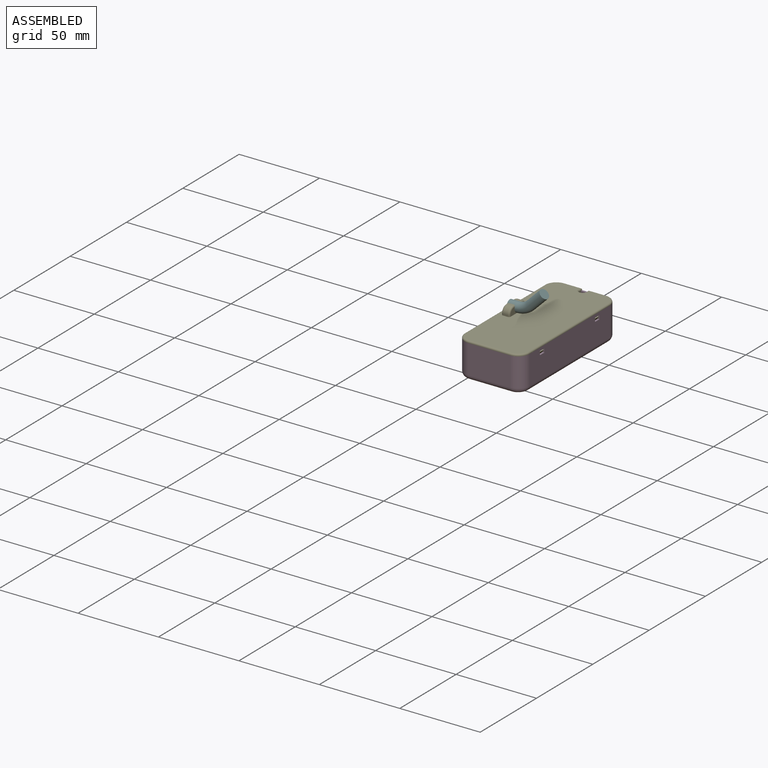
[diagram: assembled view]
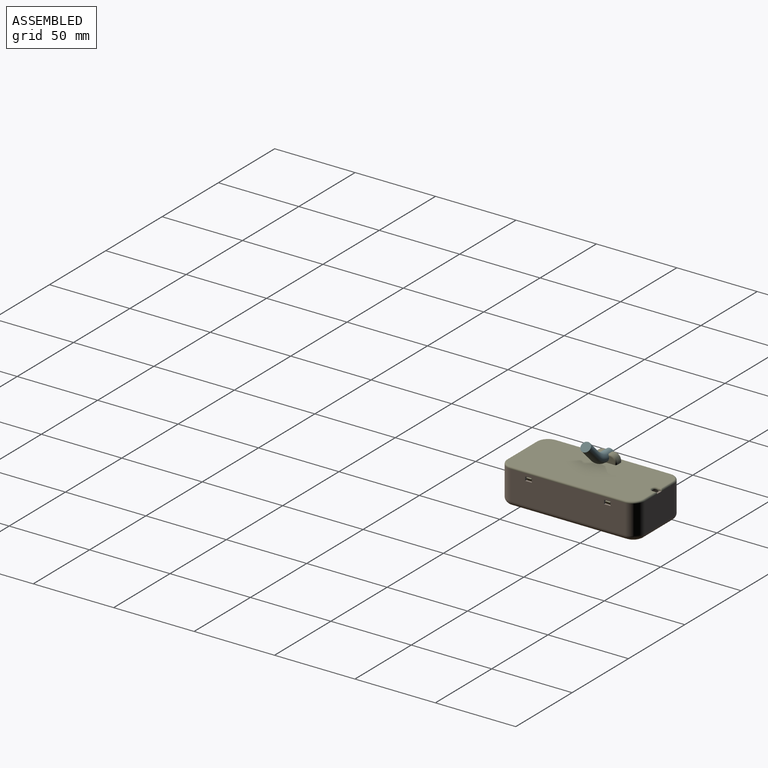
[diagram: assembled view, second angle]
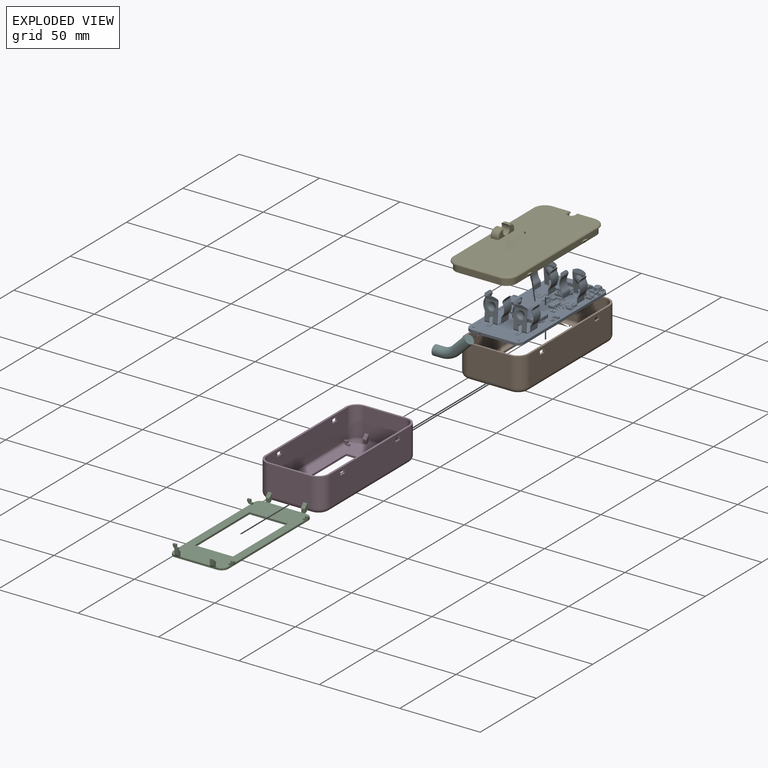
[diagram: exploded view]
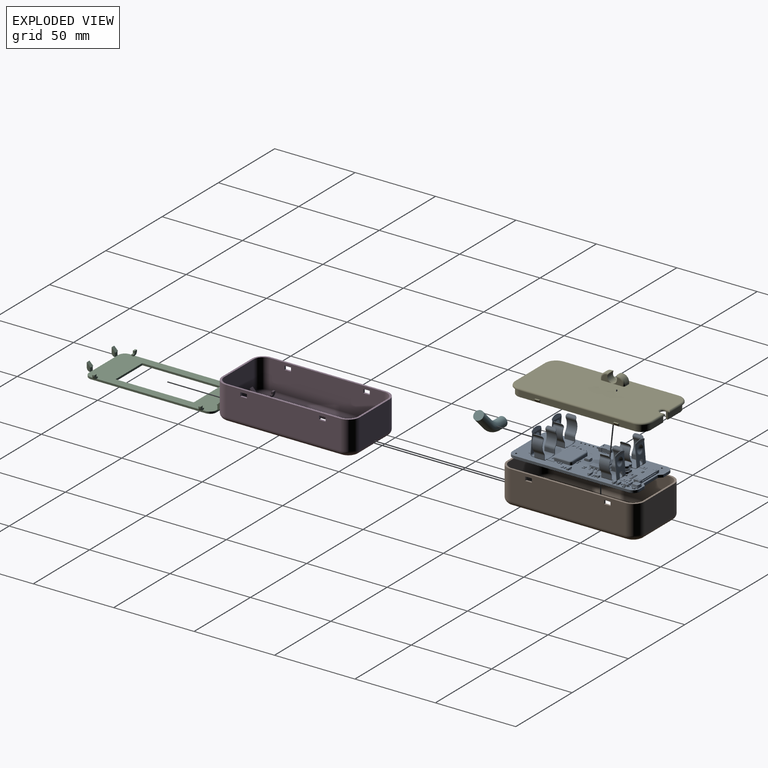
[diagram: exploded view, second angle]
FCSTD DOCUMENT  (FreeCAD 2022.1112R26244 +5306 (Git))
Label: enclosure
License: All rights reserved
LicenseURL: http://en.wikipedia.org/wiki/All_rights_reserved
objects: App::Link×64, Part::Feature×24, Sketcher::SketchObject×20, Part::SubShapeBinder×13, PartDesign::Plane×13, PartDesign::Pad×8, PartDesign::Pocket×5, PartDesign::Body×5, App::Part×4, PartDesign::Fillet×3, PartDesign::AdditivePipe×2, PartDesign::SubShapeBinder×2, PartDesign::LinearPattern×2, PartDesign::CoordinateSystem×1, PartDesign::Boolean×1
note: 160 computed .brp shape members not serialized (recipe doc carries the construction recipe); baked Part::Feature solids carry a one-line shape summary decoded from their .brp

FEATURE [PartDesign::CoordinateSystem] Local_CS_47af
  AttacherType = Attacher::AttachEngine3D
  AttachmentSupport = -> [X_Axis]
  MapMode = 2
  Support = -> [X_Axis]
  TreeRank = 35
FEATURE [Part::Feature] Pcb_47af
  Placement = pos=(-166,110,0) rot=(0,0,1;0rad)
  TreeRank = 36
  shape: bbox 34 x 79.17 x 1.6 mm, 48 faces (baked)
FEATURE [Sketcher::SketchObject] PCB_Sketch_47af
  ArcFitTolerance = 1e-06
  ExternalBSplineMaxDegree = 5
  ExternalBSplineTolerance = 0.0001
  FullyConstrained = false
  InternalTolerance = 1e-06
  MakeInternals = false
  TreeRank = 43
  sketch-geometry (12):
    g0: LineSegment StartX=0 StartY=69 StartZ=0 EndX=0 EndY=-2.17157 EndZ=0
    g1: LineSegment StartX=23.5 StartY=71 StartZ=0 EndX=25.5 EndY=73 EndZ=0
    g2: LineSegment StartX=4 StartY=-6.17157 StartZ=0 EndX=30 EndY=-6.17157 EndZ=0
    g3: LineSegment StartX=11 StartY=71 StartZ=0 EndX=23.5 EndY=71 EndZ=0
    g4: LineSegment StartX=34 StartY=-2.17157 StartZ=0 EndX=34 EndY=69 EndZ=0
    g5: LineSegment StartX=4 StartY=73 StartZ=0 EndX=9 EndY=73 EndZ=0
    g6: LineSegment StartX=25.5 StartY=73 StartZ=0 EndX=30 EndY=73 EndZ=0
    g7: LineSegment StartX=9 StartY=73 StartZ=0 EndX=11 EndY=71 EndZ=0
    g8: ArcOfCircle CenterX=30 CenterY=69 CenterZ=0 NormalX=0 NormalY=0 NormalZ=-1 AngleXU=1.5708 Radius=4 StartAngle=0 EndAngle=1.5708
    g9: ArcOfCircle CenterX=4 CenterY=69 CenterZ=0 NormalX=0 NormalY=0 NormalZ=-1 AngleXU=1.06478e-07 Radius=4 StartAngle=0 EndAngle=1.5708
    g10: ArcOfCircle CenterX=30 CenterY=-2.17157 CenterZ=0 NormalX=0 NormalY=0 NormalZ=-1 AngleXU=-3.14159 Radius=4 StartAngle=0 EndAngle=1.5708
    g11: ArcOfCircle CenterX=4 CenterY=-2.17157 CenterZ=0 NormalX=0 NormalY=0 NormalZ=-1 AngleXU=-1.5708 Radius=4 StartAngle=0 EndAngle=1.5708
  constraints (12):
    c: Coincident(g0,g11)
    c: Coincident(g0,g9)
    c: Coincident(g11,g2)
    c: Coincident(g9,g5)
    c: Coincident(g7,g5)
    c: Coincident(g3,g7)
    c: Coincident(g3,g1)
    c: Coincident(g6,g1)
    c: Coincident(g2,g10)
    c: Coincident(g6,g8)
    c: Coincident(g4,g10)
    c: Coincident(g4,g8)
FEATURE [App::Part] Board_Geoms_47af
  ClaimAllChildren = false
  ExportMode = 1
  Group = -> [Pcb_47af,PCB_Sketch_47af]
  Origin = -> Origin
  TreeRank = 38
  _ExportChildren = -> [Pcb_47af,PCB_Sketch_47af]
  _GroupVersion = 1
FEATURE [Part::Feature] Shape  label="J1_PinHeader_1x04_P127mm_Vertical_SMD_Pin1Right_e02062a86f3b"
  Placement = pos=(30.3491,35.66,0) rot=(0,0,1;3.14159rad)
  TreeRank = 51
  shape: bbox 4.9 x 5.08 x 3.9 mm, 104 faces (baked)
FEATURE [Part::Feature] Shape001  label="BT1_53_5f218489411b"
  Placement = pos=(8,55.825,0.5) rot=(1,0,0;1.5708rad)
  TreeRank = 56
  shape: bbox 13.31 x 16.8 x 15.64 mm, 149 faces (baked)
FEATURE [App::Link] BT1_53_5f218489411b_ln_  label="BT1_53_5f218489411b[2]"
  AutoLinkLabel = true
  AutoPlacement = true
  LinkPlacement = pos=(8,7.825,0.5) rot=(0,0.707107,0.707107;3.14159rad)
  LinkedObject = -> Shape001
  Placement = pos=(8,7.825,0.5) rot=(0,0.707107,0.707107;3.14159rad)
  SyncGroupVisibility = false
  TreeRank = 57
  _LinkVersion = 1
FEATURE [Part::Feature] Shape002  label="BT1_AA Battery_5f218489411b[3]"
  Placement = pos=(8,6.325,9) rot=(0,0,1;0rad)
  TreeRank = 61
  shape: bbox 15.69 x 50.5 x 15.69 mm, 18 faces (baked)
FEATURE [Part::Feature] Shape003  label="C41_C_0402_1005Metric_897c0ba0cca2"
  Placement = pos=(15.8,21.7,0) rot=(0,0,1;3.14159rad)
  TreeRank = 66
  shape: bbox 1 x 0.5 x 0.5 mm, 28 faces (baked)
FEATURE [App::Link] C41_C_0402_1005Metric_897c0ba0cca2_ln_  label="C27_C_0402_1005Metric_3e53e8fe6d65"
  AutoLinkLabel = true
  AutoPlacement = true
  LinkPlacement = pos=(16.99,44.13,0) rot=(0,0,1;3.14159rad)
  LinkedObject = -> Shape003
  Placement = pos=(16.99,44.13,0) rot=(0,0,1;3.14159rad)
  SyncGroupVisibility = false
  TreeRank = 67
  _LinkVersion = 1
FEATURE [Part::Feature] Shape004  label="R5_R_0603_1608Metric_31cadc15de2a"
  Placement = pos=(25,63.45,0) rot=(0,0,1;3.14159rad)
  TreeRank = 71
  shape: bbox 1.6 x 0.8 x 0.45 mm, 26 faces (baked)
FEATURE [Part::Feature] Shape005  label="U1_QFN_32_1EP_5x5mm_P05mm_EP31x31mm_b90c59655915"
  Placement = pos=(19.9,23,0) rot=(0,0,1;1.5708rad)
  TreeRank = 75
  shape: bbox 5 x 5 x 1.1 mm, 206 faces (baked)
FEATURE [Part::Feature] Shape006  label="U1_MS155-20S_b90c59655915[2]"
  Placement = pos=(19.9,23,2.5) rot=(0.57735,0.57735,0.57735;2.0944rad)
  TreeRank = 79
  shape: bbox 15.73 x 11.62 x 2.3 mm, 42 faces (baked)
FEATURE [App::Link] C41_C_0402_1005Metric_897c0ba0cca2_ln_001  label="C22_C_0402_1005Metric_3ba95f2d05b9"
  AutoLinkLabel = true
  AutoPlacement = true
  LinkPlacement = pos=(14.39,49.33,0) rot=(0,0,-1;1.5708rad)
  LinkedObject = -> Shape003
  Placement = pos=(14.39,49.33,0) rot=(0,0,-1;1.5708rad)
  SyncGroupVisibility = false
  TreeRank = 85
  _LinkVersion = 1
FEATURE [Part::Feature] Shape008  label="D5_D_SOD_123_2144a67984e1"
  Placement = pos=(31.1,65.5,0) rot=(0,0,1;1.5708rad)
  TreeRank = 89
  shape: bbox 1.6 x 3.8 x 1.25 mm, 67 faces (baked)
FEATURE [Part::Feature] Shape009  label="L2_328F7315-FE91-4912-964B-5D63DD83692F_63db00c61d5c[2]"
  Placement = pos=(17,54.95,0) rot=(0.57735,-0.57735,-0.57735;2.0944rad)
  TreeRank = 93
  shape: bbox 6.494 x 6.494 x 4.537 mm, 170 faces (baked)
FEATURE [Part::Feature] Shape010  label="R3_R_0402_1005Metric_8bfb24dad279"
  Placement = pos=(20.6,19.3,0) rot=(0,0,1;0rad)
  TreeRank = 97
  shape: bbox 1 x 0.5 x 0.35 mm, 26 faces (baked)
FEATURE [Part::Feature] Shape011  label="U2_SOT_223_8d4968691867"
  Placement = pos=(22.4,41,0) rot=(0,0,1;3.14159rad)
  TreeRank = 101
  shape: bbox 7 x 6.5 x 1.7 mm, 78 faces (baked)
FEATURE [Part::Feature] Shape012  label="U3_MSOP_8_3x3mm_P065mm_7fd6f4660f38"
  Placement = pos=(16.69,47.9,0) rot=(0,0,1;1.5708rad)
  TreeRank = 108
  shape: bbox 3 x 4.9 x 0.95 mm, 156 faces (baked)
FEATURE [App::Link] C41_C_0402_1005Metric_897c0ba0cca2_ln_002  label="C47_C_0402_1005Metric_f4319a29fbc9"
  AutoLinkLabel = true
  AutoPlacement = true
  LinkPlacement = pos=(20.7,27.1,0) rot=(0,0,1;1.5708rad)
  LinkedObject = -> Shape003
  Placement = pos=(20.7,27.1,0) rot=(0,0,1;1.5708rad)
  SyncGroupVisibility = false
  TreeRank = 109
  _LinkVersion = 1
FEATURE [App::Link] R5_R_0603_1608Metric_31cadc15de2a_ln_  label="R20_R_0603_1608Metric_8b66fdb7254d"
  AutoLinkLabel = true
  AutoPlacement = true
  LinkPlacement = pos=(9.3,23,0) rot=(0,0,1;0rad)
  LinkedObject = -> Shape004
  Placement = pos=(9.3,23,0) rot=(0,0,1;0rad)
  SyncGroupVisibility = false
  TreeRank = 110
  _LinkVersion = 1
FEATURE [App::Link] R5_R_0603_1608Metric_31cadc15de2a_ln_001  label="R22_R_0603_1608Metric_25949d85a984"
  AutoLinkLabel = true
  AutoPlacement = true
  LinkPlacement = pos=(25.2,24.5,0) rot=(0,0,-1;1.5708rad)
  LinkedObject = -> Shape004
  Placement = pos=(25.2,24.5,0) rot=(0,0,-1;1.5708rad)
  SyncGroupVisibility = false
  TreeRank = 111
  _LinkVersion = 1
FEATURE [Part::Feature] Shape013  label="J4_ISFV24R_4STLF_05b5309cd6ac"
  Placement = pos=(25.15,70,0) rot=(0,0.707107,0.707107;3.14159rad)
  TreeRank = 119
  shape: bbox 17.5 x 4.9 x 1.87 mm, 508 faces (baked)
FEATURE [App::Link] C41_C_0402_1005Metric_897c0ba0cca2_ln_003  label="C10_C_0402_1005Metric_43c8dd74fa57"
  AutoLinkLabel = true
  AutoPlacement = true
  LinkPlacement = pos=(18,62.5,0) rot=(0,0,-1;1.5708rad)
  LinkedObject = -> Shape003
  Placement = pos=(18,62.5,0) rot=(0,0,-1;1.5708rad)
  SyncGroupVisibility = false
  TreeRank = 120
  _LinkVersion = 1
FEATURE [App::Link] C41_C_0402_1005Metric_897c0ba0cca2_ln_004  label="C40_C_0402_1005Metric_d8eee9cc42fe"
  AutoLinkLabel = true
  AutoPlacement = true
  LinkPlacement = pos=(19.1,18.9,0) rot=(0,0,-1;1.5708rad)
  LinkedObject = -> Shape003
  Placement = pos=(19.1,18.9,0) rot=(0,0,-1;1.5708rad)
  SyncGroupVisibility = false
  TreeRank = 121
  _LinkVersion = 1
FEATURE [App::Link] C41_C_0402_1005Metric_897c0ba0cca2_ln_005  label="C43_C_0402_1005Metric_db23a2121511"
  AutoLinkLabel = true
  AutoPlacement = true
  LinkPlacement = pos=(27.4,43.9,0) rot=(0,0,-1;1.5708rad)
  LinkedObject = -> Shape003
  Placement = pos=(27.4,43.9,0) rot=(0,0,-1;1.5708rad)
  SyncGroupVisibility = false
  TreeRank = 122
  _LinkVersion = 1
FEATURE [App::Link] C41_C_0402_1005Metric_897c0ba0cca2_ln_006  label="C24_C_0402_1005Metric_bd7e26bbc94e"
  AutoLinkLabel = true
  AutoPlacement = true
  LinkPlacement = pos=(27.65,20.3,0) rot=(0,0,1;0rad)
  LinkedObject = -> Shape003
  Placement = pos=(27.65,20.3,0) rot=(0,0,1;0rad)
  SyncGroupVisibility = false
  TreeRank = 123
  _LinkVersion = 1
FEATURE [Part::Feature] Shape014  label="C12_C_0603_1608Metric_97b70f82972d"
  Placement = pos=(31.75,70.5,0) rot=(0,0,-1;1.5708rad)
  TreeRank = 128
  shape: bbox 0.8 x 1.6 x 0.8 mm, 28 faces (baked)
FEATURE [App::Link] R5_R_0603_1608Metric_31cadc15de2a_ln_002  label="R17_R_0603_1608Metric_8a1d3744ebc7"
  AutoLinkLabel = true
  AutoPlacement = true
  LinkPlacement = pos=(16.4,42.4,0) rot=(0,0,1;0rad)
  LinkedObject = -> Shape004
  Placement = pos=(16.4,42.4,0) rot=(0,0,1;0rad)
  SyncGroupVisibility = false
  TreeRank = 129
  _LinkVersion = 1
FEATURE [Part::Feature] Shape015  label="Y3_QFN_2016_4pins_8e1e283414d8[2]"
  Placement = pos=(14.4,23.7,0.8) rot=(0.57735,0.57735,-0.57735;2.0944rad)
  TreeRank = 133
  shape: bbox 1.6 x 2.002 x 0.8 mm, 57 faces (baked)
FEATURE [Part::Feature] Shape016  label="Y2_MicroCrystal_CC8V_T1A_7a1e8200b46f[2]"
  Placement = pos=(20.9,17.9,0) rot=(0,0,1;3.14159rad)
  TreeRank = 153
  shape: bbox 2.06 x 1.2 x 0.66 mm, 28 faces (baked)
FEATURE [App::Link] C41_C_0402_1005Metric_897c0ba0cca2_ln_007  label="C16_C_0402_1005Metric_e64fe6cdc8bf"
  AutoLinkLabel = true
  AutoPlacement = true
  LinkPlacement = pos=(22,62.5,0) rot=(0,0,-1;1.5708rad)
  LinkedObject = -> Shape003
  Placement = pos=(22,62.5,0) rot=(0,0,-1;1.5708rad)
  SyncGroupVisibility = false
  TreeRank = 154
  _LinkVersion = 1
FEATURE [App::Link] C41_C_0402_1005Metric_897c0ba0cca2_ln_008  label="C28_C_0402_1005Metric_970efdabc716"
  AutoLinkLabel = true
  AutoPlacement = true
  LinkPlacement = pos=(21.7,27.1,0) rot=(0,0,1;1.5708rad)
  LinkedObject = -> Shape003
  Placement = pos=(21.7,27.1,0) rot=(0,0,1;1.5708rad)
  SyncGroupVisibility = false
  TreeRank = 155
  _LinkVersion = 1
FEATURE [App::Link] R5_R_0603_1608Metric_31cadc15de2a_ln_003  label="R8_R_0603_1608Metric_c802e71d273f"
  AutoLinkLabel = true
  AutoPlacement = true
  LinkPlacement = pos=(31.3,27.35,0) rot=(0,0,1;3.14159rad)
  LinkedObject = -> Shape004
  Placement = pos=(31.3,27.35,0) rot=(0,0,1;3.14159rad)
  SyncGroupVisibility = false
  TreeRank = 156
  _LinkVersion = 1
FEATURE [App::Link] C12_C_0603_1608Metric_97b70f82972d_ln_  label="C15_C_0603_1608Metric_b225085faf07"
  AutoLinkLabel = true
  AutoPlacement = true
  LinkPlacement = pos=(33.1,65.2,0) rot=(0,0,1;1.5708rad)
  LinkedObject = -> Shape014
  Placement = pos=(33.1,65.2,0) rot=(0,0,1;1.5708rad)
  SyncGroupVisibility = false
  TreeRank = 157
  _LinkVersion = 1
FEATURE [App::Link] BT1_53_5f218489411b_ln_001  label="BT2_53_576055dc1fd2"
  AutoLinkLabel = true
  AutoPlacement = true
  LinkPlacement = pos=(26,55.9,0.5) rot=(1,0,0;1.5708rad)
  LinkedObject = -> Shape001
  Placement = pos=(26,55.9,0.5) rot=(1,0,0;1.5708rad)
  SyncGroupVisibility = false
  TreeRank = 158
  _LinkVersion = 1
FEATURE [App::Link] BT1_53_5f218489411b_ln_002  label="BT2_53_576055dc1fd2[2]"
  AutoLinkLabel = true
  AutoPlacement = true
  LinkPlacement = pos=(26,7.9,0.5) rot=(0,0.707107,0.707107;3.14159rad)
  LinkedObject = -> Shape001
  Placement = pos=(26,7.9,0.5) rot=(0,0.707107,0.707107;3.14159rad)
  SyncGroupVisibility = false
  TreeRank = 159
  _LinkVersion = 1
FEATURE [App::Link] BT1_AA_Battery_5f218489411b_3__ln_  label="BT2_AA Battery_576055dc1fd2[3]"
  AutoLinkLabel = true
  AutoPlacement = true
  LinkPlacement = pos=(26,6.4,9) rot=(0,0,1;0rad)
  LinkedObject = -> Shape002
  Placement = pos=(26,6.4,9) rot=(0,0,1;0rad)
  SyncGroupVisibility = false
  TreeRank = 160
  _LinkVersion = 1
FEATURE [App::Link] D5_D_SOD_123_2144a67984e1_ln_  label="D3_D_SOD_123_8e97b894e557"
  AutoLinkLabel = true
  AutoPlacement = true
  LinkPlacement = pos=(31.4,60.9,0) rot=(0,0,1;3.14159rad)
  LinkedObject = -> Shape008
  Placement = pos=(31.4,60.9,0) rot=(0,0,1;3.14159rad)
  SyncGroupVisibility = false
  TreeRank = 161
  _LinkVersion = 1
FEATURE [App::Link] C41_C_0402_1005Metric_897c0ba0cca2_ln_009  label="C36_C_0402_1005Metric_345586e42d59"
  AutoLinkLabel = true
  AutoPlacement = true
  LinkPlacement = pos=(15.8,19.55,0) rot=(0,0,1;3.14159rad)
  LinkedObject = -> Shape003
  Placement = pos=(15.8,19.55,0) rot=(0,0,1;3.14159rad)
  SyncGroupVisibility = false
  TreeRank = 162
  _LinkVersion = 1
FEATURE [App::Link] C41_C_0402_1005Metric_897c0ba0cca2_ln_010  label="C9_C_0402_1005Metric_1fef9b846d5d"
  AutoLinkLabel = true
  AutoPlacement = true
  LinkPlacement = pos=(13.4,62.9,0) rot=(0,0,-1;1.5708rad)
  LinkedObject = -> Shape003
  Placement = pos=(13.4,62.9,0) rot=(0,0,-1;1.5708rad)
  SyncGroupVisibility = false
  TreeRank = 163
  _LinkVersion = 1
FEATURE [App::Link] C41_C_0402_1005Metric_897c0ba0cca2_ln_011  label="C13_C_0402_1005Metric_625a67dd1651"
  AutoLinkLabel = true
  AutoPlacement = true
  LinkPlacement = pos=(20,62.5,0) rot=(0,0,-1;1.5708rad)
  LinkedObject = -> Shape003
  Placement = pos=(20,62.5,0) rot=(0,0,-1;1.5708rad)
  SyncGroupVisibility = false
  TreeRank = 164
  _LinkVersion = 1
FEATURE [App::Link] C41_C_0402_1005Metric_897c0ba0cca2_ln_012  label="C35_C_0402_1005Metric_90ad5151eeb2"
  AutoLinkLabel = true
  AutoPlacement = true
  LinkPlacement = pos=(22.7,18.95,0) rot=(0,0,-1;1.5708rad)
  LinkedObject = -> Shape003
  Placement = pos=(22.7,18.95,0) rot=(0,0,-1;1.5708rad)
  SyncGroupVisibility = false
  TreeRank = 165
  _LinkVersion = 1
FEATURE [App::Link] C41_C_0402_1005Metric_897c0ba0cca2_ln_013  label="C45_C_0402_1005Metric_99db16524e84"
  AutoLinkLabel = true
  AutoPlacement = true
  LinkPlacement = pos=(29.3,29.65,0) rot=(0,0,-1;1.5708rad)
  LinkedObject = -> Shape003
  Placement = pos=(29.3,29.65,0) rot=(0,0,-1;1.5708rad)
  SyncGroupVisibility = false
  TreeRank = 166
  _LinkVersion = 1
FEATURE [App::Link] D5_D_SOD_123_2144a67984e1_ln_001  label="D1_D_SOD_123_e623fb659550"
  AutoLinkLabel = true
  AutoPlacement = true
  LinkPlacement = pos=(30.5,42.5,0) rot=(0,0,1;3.14159rad)
  LinkedObject = -> Shape008
  Placement = pos=(30.5,42.5,0) rot=(0,0,1;3.14159rad)
  SyncGroupVisibility = false
  TreeRank = 167
  _LinkVersion = 1
FEATURE [App::Link] C41_C_0402_1005Metric_897c0ba0cca2_ln_014  label="C11_C_0402_1005Metric_280a0b13fb1f"
  AutoLinkLabel = true
  AutoPlacement = true
  LinkPlacement = pos=(19,62.5,0) rot=(0,0,-1;1.5708rad)
  LinkedObject = -> Shape003
  Placement = pos=(19,62.5,0) rot=(0,0,-1;1.5708rad)
  SyncGroupVisibility = false
  TreeRank = 168
  _LinkVersion = 1
FEATURE [App::Link] C41_C_0402_1005Metric_897c0ba0cca2_ln_015  label="C18_C_0402_1005Metric_496697bbdc2c"
  AutoLinkLabel = true
  AutoPlacement = true
  LinkPlacement = pos=(31.1,62.6,0) rot=(0,0,1;0rad)
  LinkedObject = -> Shape003
  Placement = pos=(31.1,62.6,0) rot=(0,0,1;0rad)
  SyncGroupVisibility = false
  TreeRank = 169
  _LinkVersion = 1
FEATURE [Part::Feature] Shape017  label="Q1_SOT_23_b4141e10c804"
  Placement = pos=(28.2,66,0) rot=(0,0,-1;1.5708rad)
  TreeRank = 178
  shape: bbox 3 x 2.5 x 1.2 mm, 76 faces (baked)
FEATURE [App::Link] R5_R_0603_1608Metric_31cadc15de2a_ln_004  label="R12_R_0603_1608Metric_bc90017c3565"
  AutoLinkLabel = true
  AutoPlacement = true
  LinkPlacement = pos=(28.05,23,0) rot=(0,0,1;3.14159rad)
  LinkedObject = -> Shape004
  Placement = pos=(28.05,23,0) rot=(0,0,1;3.14159rad)
  SyncGroupVisibility = false
  TreeRank = 179
  _LinkVersion = 1
FEATURE [App::Link] R5_R_0603_1608Metric_31cadc15de2a_ln_005  label="R6_R_0603_1608Metric_5a5c3835f956"
  AutoLinkLabel = true
  AutoPlacement = true
  LinkPlacement = pos=(28.2,63.3,0) rot=(0,0,1;3.14159rad)
  LinkedObject = -> Shape004
  Placement = pos=(28.2,63.3,0) rot=(0,0,1;3.14159rad)
  SyncGroupVisibility = false
  TreeRank = 180
  _LinkVersion = 1
FEATURE [App::Link] C12_C_0603_1608Metric_97b70f82972d_ln_001  label="C34_C_0603_1608Metric_e42c9b69ddb7"
  AutoLinkLabel = true
  AutoPlacement = true
  LinkPlacement = pos=(13.2,20.3,0) rot=(0,0,1;3.14159rad)
  LinkedObject = -> Shape014
  Placement = pos=(13.2,20.3,0) rot=(0,0,1;3.14159rad)
  SyncGroupVisibility = false
  TreeRank = 181
  _LinkVersion = 1
FEATURE [App::Link] C41_C_0402_1005Metric_897c0ba0cca2_ln_016  label="C23_C_0402_1005Metric_028d0c014da1"
  AutoLinkLabel = true
  AutoPlacement = true
  LinkPlacement = pos=(20.6,29.2,0) rot=(0,0,-1;1.5708rad)
  LinkedObject = -> Shape003
  Placement = pos=(20.6,29.2,0) rot=(0,0,-1;1.5708rad)
  SyncGroupVisibility = false
  TreeRank = 182
  _LinkVersion = 1
FEATURE [App::Link] R5_R_0603_1608Metric_31cadc15de2a_ln_006  label="R15_R_0603_1608Metric_27229d244955"
  AutoLinkLabel = true
  AutoPlacement = true
  LinkPlacement = pos=(19.29,46.23,0) rot=(0,0,-1;1.5708rad)
  LinkedObject = -> Shape004
  Placement = pos=(19.29,46.23,0) rot=(0,0,-1;1.5708rad)
  SyncGroupVisibility = false
  TreeRank = 183
  _LinkVersion = 1
FEATURE [Part::Feature] Shape018  label="C1_CP_EIA_3528_15_AVX_H_56946f5564e9"
  Placement = pos=(17,31.9,0) rot=(0,0,1;1.5708rad)
  TreeRank = 188
  shape: bbox 3.083 x 3.5 x 1.5 mm, 41 faces (baked)
FEATURE [App::Link] R5_R_0603_1608Metric_31cadc15de2a_ln_007  label="R11_R_0603_1608Metric_badb5b0729e6"
  AutoLinkLabel = true
  AutoPlacement = true
  LinkPlacement = pos=(22.6,29.1,0) rot=(0,0,1;0rad)
  LinkedObject = -> Shape004
  Placement = pos=(22.6,29.1,0) rot=(0,0,1;0rad)
  SyncGroupVisibility = false
  TreeRank = 189
  _LinkVersion = 1
FEATURE [Part::Feature] Shape019  label="L3_L_0402_1005Metric_e5b55587f8e0"
  Placement = pos=(16.25,18.1,0) rot=(0,0,-1;1.5708rad)
  TreeRank = 193
  shape: bbox 0.5 x 1 x 0.5 mm, 28 faces (baked)
FEATURE [Part::Feature] Shape020  label="J9_u254-051t-4bh83-f1s_0ab50cc6c8f0"
  Placement = pos=(0,33.4,0) rot=(0.57735,-0.57735,-0.57735;2.0944rad)
  TreeRank = 211
  shape: bbox 5.451 x 7.414 x 3.057 mm, 194 faces (baked)
FEATURE [App::Link] R5_R_0603_1608Metric_31cadc15de2a_ln_008  label="R21_R_0603_1608Metric_a45fcabd95cc"
  AutoLinkLabel = true
  AutoPlacement = true
  LinkPlacement = pos=(31.3,25.8,0) rot=(0,0,1;3.14159rad)
  LinkedObject = -> Shape004
  Placement = pos=(31.3,25.8,0) rot=(0,0,1;3.14159rad)
  SyncGroupVisibility = false
  TreeRank = 212
  _LinkVersion = 1
FEATURE [App::Link] D5_D_SOD_123_2144a67984e1_ln_002  label="D4_D_SOD_123_dcff5c5628fb"
  AutoLinkLabel = true
  AutoPlacement = true
  LinkPlacement = pos=(31.6,58.5,0) rot=(0,0,1;0rad)
  LinkedObject = -> Shape008
  Placement = pos=(31.6,58.5,0) rot=(0,0,1;0rad)
  SyncGroupVisibility = false
  TreeRank = 213
  _LinkVersion = 1
FEATURE [App::Link] C41_C_0402_1005Metric_897c0ba0cca2_ln_017  label="C33_C_0402_1005Metric_20601a5912b5"
  AutoLinkLabel = true
  AutoPlacement = true
  LinkPlacement = pos=(18.1,18.9,0) rot=(0,0,-1;1.5708rad)
  LinkedObject = -> Shape003
  Placement = pos=(18.1,18.9,0) rot=(0,0,-1;1.5708rad)
  SyncGroupVisibility = false
  TreeRank = 214
  _LinkVersion = 1
FEATURE [App::Link] R5_R_0603_1608Metric_31cadc15de2a_ln_009  label="R10_R_0603_1608Metric_b88160626819"
  AutoLinkLabel = true
  AutoPlacement = true
  LinkPlacement = pos=(24.55,35.3,0) rot=(0,0,1;1.5708rad)
  LinkedObject = -> Shape004
  Placement = pos=(24.55,35.3,0) rot=(0,0,1;1.5708rad)
  SyncGroupVisibility = false
  TreeRank = 215
  _LinkVersion = 1
FEATURE [App::Link] R3_R_0402_1005Metric_8bfb24dad279_ln_  label="R14_R_0402_1005Metric_3777788c64c1"
  AutoLinkLabel = true
  AutoPlacement = true
  LinkPlacement = pos=(16.2,23.2,0) rot=(0,0,1;1.5708rad)
  LinkedObject = -> Shape010
  Placement = pos=(16.2,23.2,0) rot=(0,0,1;1.5708rad)
  SyncGroupVisibility = false
  TreeRank = 216
  _LinkVersion = 1
FEATURE [App::Link] C41_C_0402_1005Metric_897c0ba0cca2_ln_018  label="C44_C_0402_1005Metric_59d58a5d4b50"
  AutoLinkLabel = true
  AutoPlacement = true
  LinkPlacement = pos=(27.4,41.7,0) rot=(0,0,1;1.5708rad)
  LinkedObject = -> Shape003
  Placement = pos=(27.4,41.7,0) rot=(0,0,1;1.5708rad)
  SyncGroupVisibility = false
  TreeRank = 217
  _LinkVersion = 1
FEATURE [App::Link] C41_C_0402_1005Metric_897c0ba0cca2_ln_019  label="C8_C_0402_1005Metric_ea37be3c7e87"
  AutoLinkLabel = true
  AutoPlacement = true
  LinkPlacement = pos=(18.62,60.36,0) rot=(0,0,1;3.14159rad)
  LinkedObject = -> Shape003
  Placement = pos=(18.62,60.36,0) rot=(0,0,1;3.14159rad)
  SyncGroupVisibility = false
  TreeRank = 218
  _LinkVersion = 1
FEATURE [App::Link] C12_C_0603_1608Metric_97b70f82972d_ln_002  label="C46_C_0603_1608Metric_c5f89d94858d"
  AutoLinkLabel = true
  AutoPlacement = true
  LinkPlacement = pos=(13.1,18.8,0) rot=(0,0,1;3.14159rad)
  LinkedObject = -> Shape014
  Placement = pos=(13.1,18.8,0) rot=(0,0,1;3.14159rad)
  SyncGroupVisibility = false
  TreeRank = 219
  _LinkVersion = 1
FEATURE [App::Link] C41_C_0402_1005Metric_897c0ba0cca2_ln_020  label="C31_C_0402_1005Metric_607be1c074ba"
  AutoLinkLabel = true
  AutoPlacement = true
  LinkPlacement = pos=(18.6,17.42,0) rot=(0,0,1;3.14159rad)
  LinkedObject = -> Shape003
  Placement = pos=(18.6,17.42,0) rot=(0,0,1;3.14159rad)
  SyncGroupVisibility = false
  TreeRank = 220
  _LinkVersion = 1
FEATURE [App::Link] C12_C_0603_1608Metric_97b70f82972d_ln_003  label="C25_C_0603_1608Metric_3a1f047245d0"
  AutoLinkLabel = true
  AutoPlacement = true
  LinkPlacement = pos=(21.05,58,0) rot=(0,0,1;1.5708rad)
  LinkedObject = -> Shape014
  Placement = pos=(21.05,58,0) rot=(0,0,1;1.5708rad)
  SyncGroupVisibility = false
  TreeRank = 221
  _LinkVersion = 1
FEATURE [App::Link] C41_C_0402_1005Metric_897c0ba0cca2_ln_021  label="C26_C_0402_1005Metric_df112f1c1b53"
  AutoLinkLabel = true
  AutoPlacement = true
  LinkPlacement = pos=(19,49.6,0) rot=(0,0,-1;1.5708rad)
  LinkedObject = -> Shape003
  Placement = pos=(19,49.6,0) rot=(0,0,-1;1.5708rad)
  SyncGroupVisibility = false
  TreeRank = 222
  _LinkVersion = 1
FEATURE [App::Link] C41_C_0402_1005Metric_897c0ba0cca2_ln_022  label="C29_C_0402_1005Metric_32e1de94dc8b"
  AutoLinkLabel = true
  AutoPlacement = true
  LinkPlacement = pos=(15.8,20.7,0) rot=(0,0,1;3.14159rad)
  LinkedObject = -> Shape003
  Placement = pos=(15.8,20.7,0) rot=(0,0,1;3.14159rad)
  SyncGroupVisibility = false
  TreeRank = 223
  _LinkVersion = 1
FEATURE [App::Link] R5_R_0603_1608Metric_31cadc15de2a_ln_010  label="R24_R_0603_1608Metric_2535d7dc7a09"
  AutoLinkLabel = true
  AutoPlacement = true
  LinkPlacement = pos=(9.3,24.6,0) rot=(0,0,1;3.14159rad)
  LinkedObject = -> Shape004
  Placement = pos=(9.3,24.6,0) rot=(0,0,1;3.14159rad)
  SyncGroupVisibility = false
  TreeRank = 224
  _LinkVersion = 1
FEATURE [App::Link] C41_C_0402_1005Metric_897c0ba0cca2_ln_023  label="C38_C_0402_1005Metric_f2902c585d0c"
  AutoLinkLabel = true
  AutoPlacement = true
  LinkPlacement = pos=(13.9,21.7,0) rot=(0,0,1;3.14159rad)
  LinkedObject = -> Shape003
  Placement = pos=(13.9,21.7,0) rot=(0,0,1;3.14159rad)
  SyncGroupVisibility = false
  TreeRank = 225
  _LinkVersion = 1
FEATURE [Part::Feature] Shape021  label="L1_L_Bourns-SRN4018_5a3265796683"
  Placement = pos=(28.7,70.2,0) rot=(0,0,1;3.14159rad)
  TreeRank = 244
  shape: bbox 4.041 x 4.111 x 1.805 mm, 136 faces, 5 solids (baked)
FEATURE [App::Link] C41_C_0402_1005Metric_897c0ba0cca2_ln_024  label="C37_C_0402_1005Metric_5509b9a47237"
  AutoLinkLabel = true
  AutoPlacement = true
  LinkPlacement = pos=(16.7,16.65,0) rot=(0,0,1;0rad)
  LinkedObject = -> Shape003
  Placement = pos=(16.7,16.65,0) rot=(0,0,1;0rad)
  SyncGroupVisibility = false
  TreeRank = 245
  _LinkVersion = 1
FEATURE [App::Link] R5_R_0603_1608Metric_31cadc15de2a_ln_011  label="R23_R_0603_1608Metric_8a9209326653"
  AutoLinkLabel = true
  AutoPlacement = true
  LinkPlacement = pos=(31.1,44.5,0) rot=(0,0,1;3.14159rad)
  LinkedObject = -> Shape004
  Placement = pos=(31.1,44.5,0) rot=(0,0,1;3.14159rad)
  SyncGroupVisibility = false
  TreeRank = 246
  _LinkVersion = 1
FEATURE [App::Link] R5_R_0603_1608Metric_31cadc15de2a_ln_012  label="R9_R_0603_1608Metric_fc13e3dbdfd0"
  AutoLinkLabel = true
  AutoPlacement = true
  LinkPlacement = pos=(26.05,35.3,0) rot=(0,0,1;1.5708rad)
  LinkedObject = -> Shape004
  Placement = pos=(26.05,35.3,0) rot=(0,0,1;1.5708rad)
  SyncGroupVisibility = false
  TreeRank = 247
  _LinkVersion = 1
FEATURE [App::Link] C41_C_0402_1005Metric_897c0ba0cca2_ln_025  label="C7_C_0402_1005Metric_96a2b8d0eb11"
  AutoLinkLabel = true
  AutoPlacement = true
  LinkPlacement = pos=(12.4,62.9,0) rot=(0,0,-1;1.5708rad)
  LinkedObject = -> Shape003
  Placement = pos=(12.4,62.9,0) rot=(0,0,-1;1.5708rad)
  SyncGroupVisibility = false
  TreeRank = 248
  _LinkVersion = 1
FEATURE [App::Link] C41_C_0402_1005Metric_897c0ba0cca2_ln_026  label="C39_C_0402_1005Metric_b6bf5ed5cc27"
  AutoLinkLabel = true
  AutoPlacement = true
  LinkPlacement = pos=(14.12,25.7,0) rot=(0,0,1;0rad)
  LinkedObject = -> Shape003
  Placement = pos=(14.12,25.7,0) rot=(0,0,1;0rad)
  SyncGroupVisibility = false
  TreeRank = 249
  _LinkVersion = 1
FEATURE [App::Link] C41_C_0402_1005Metric_897c0ba0cca2_ln_027  label="C32_C_0402_1005Metric_3f656b534a28"
  AutoLinkLabel = true
  AutoPlacement = true
  LinkPlacement = pos=(24,22.3,0) rot=(0,0,1;0rad)
  LinkedObject = -> Shape003
  Placement = pos=(24,22.3,0) rot=(0,0,1;0rad)
  SyncGroupVisibility = false
  TreeRank = 250
  _LinkVersion = 1
FEATURE [App::Link] C12_C_0603_1608Metric_97b70f82972d_ln_004  label="C21_C_0603_1608Metric_8a57c99c3ec4"
  AutoLinkLabel = true
  AutoPlacement = true
  LinkPlacement = pos=(14.15,46.85,0) rot=(0,0,-1;1.5708rad)
  LinkedObject = -> Shape014
  Placement = pos=(14.15,46.85,0) rot=(0,0,-1;1.5708rad)
  SyncGroupVisibility = false
  TreeRank = 251
  _LinkVersion = 1
FEATURE [App::Link] R5_R_0603_1608Metric_31cadc15de2a_ln_013  label="R16_R_0603_1608Metric_ae69e279ba52"
  AutoLinkLabel = true
  AutoPlacement = true
  LinkPlacement = pos=(14.55,43.9,0) rot=(0,0,1;0rad)
  LinkedObject = -> Shape004
  Placement = pos=(14.55,43.9,0) rot=(0,0,1;0rad)
  SyncGroupVisibility = false
  TreeRank = 252
  _LinkVersion = 1
FEATURE [App::Link] C41_C_0402_1005Metric_897c0ba0cca2_ln_028  label="C17_C_0402_1005Metric_6212efdf25c9"
  AutoLinkLabel = true
  AutoPlacement = true
  LinkPlacement = pos=(23,62.5,0) rot=(0,0,-1;1.5708rad)
  LinkedObject = -> Shape003
  Placement = pos=(23,62.5,0) rot=(0,0,-1;1.5708rad)
  SyncGroupVisibility = false
  TreeRank = 253
  _LinkVersion = 1
FEATURE [App::Link] Q1_SOT_23_b4141e10c804_ln_  label="Q3_SOT_23_89b4c9772172"
  AutoLinkLabel = true
  AutoPlacement = true
  LinkPlacement = pos=(30.7,47,0) rot=(0,0,-1;3.14159rad)
  LinkedObject = -> Shape017
  Placement = pos=(30.7,47,0) rot=(0,0,1;3.14159rad)
  SyncGroupVisibility = false
  TreeRank = 254
  _LinkVersion = 1
FEATURE [App::Link] C41_C_0402_1005Metric_897c0ba0cca2_ln_029  label="C14_C_0402_1005Metric_4518d9abc271"
  AutoLinkLabel = true
  AutoPlacement = true
  LinkPlacement = pos=(21,62.5,0) rot=(0,0,-1;1.5708rad)
  LinkedObject = -> Shape003
  Placement = pos=(21,62.5,0) rot=(0,0,-1;1.5708rad)
  SyncGroupVisibility = false
  TreeRank = 255
  _LinkVersion = 1
FEATURE [App::Link] R5_R_0603_1608Metric_31cadc15de2a_ln_014  label="R18_R_0603_1608Metric_1f1ce1fddf07"
  AutoLinkLabel = true
  AutoPlacement = true
  LinkPlacement = pos=(20.3,49.3,0) rot=(0,0,-1;1.5708rad)
  LinkedObject = -> Shape004
  Placement = pos=(20.3,49.3,0) rot=(0,0,-1;1.5708rad)
  SyncGroupVisibility = false
  TreeRank = 256
  _LinkVersion = 1
FEATURE [App::Link] R5_R_0603_1608Metric_31cadc15de2a_ln_015  label="R4_R_0603_1608Metric_a1870f95ba52"
  AutoLinkLabel = true
  AutoPlacement = true
  LinkPlacement = pos=(24.65,20,0) rot=(0,0,1;3.14159rad)
  LinkedObject = -> Shape004
  Placement = pos=(24.65,20,0) rot=(0,0,1;3.14159rad)
  SyncGroupVisibility = false
  TreeRank = 257
  _LinkVersion = 1
FEATURE [App::Link] C41_C_0402_1005Metric_897c0ba0cca2_ln_030  label="C30_C_0402_1005Metric_e1f29ca87d59"
  AutoLinkLabel = true
  AutoPlacement = true
  LinkPlacement = pos=(21.3,16.52,0) rot=(0,0,1;3.14159rad)
  LinkedObject = -> Shape003
  Placement = pos=(21.3,16.52,0) rot=(0,0,1;3.14159rad)
  SyncGroupVisibility = false
  TreeRank = 258
  _LinkVersion = 1
FEATURE [App::Link] R5_R_0603_1608Metric_31cadc15de2a_ln_016  label="R13_R_0603_1608Metric_4027471a5d2d"
  AutoLinkLabel = true
  AutoPlacement = true
  LinkPlacement = pos=(28.05,21.5,0) rot=(0,0,1;0rad)
  LinkedObject = -> Shape004
  Placement = pos=(28.05,21.5,0) rot=(0,0,1;0rad)
  SyncGroupVisibility = false
  TreeRank = 259
  _LinkVersion = 1
FEATURE [Part::Feature] Shape022  label="D8_LED_0603_1608Metric_cf6c76404bea"
  Placement = pos=(9.3,21.4375,0) rot=(0,0,1;3.14159rad)
  TreeRank = 264
  shape: bbox 1.6 x 0.8 x 1.1 mm, 50 faces (baked)
FEATURE [App::Link] C41_C_0402_1005Metric_897c0ba0cca2_ln_031  label="C42_C_0402_1005Metric_af29c3a19dc4"
  AutoLinkLabel = true
  AutoPlacement = true
  LinkPlacement = pos=(14,42.7,0) rot=(0,0,1;0rad)
  LinkedObject = -> Shape003
  Placement = pos=(14,42.7,0) rot=(0,0,1;0rad)
  SyncGroupVisibility = false
  TreeRank = 265
  _LinkVersion = 1
FEATURE [App::Link] Q1_SOT_23_b4141e10c804_ln_001  label="Q2_SOT_23_f308e40e0045"
  AutoLinkLabel = true
  AutoPlacement = true
  LinkPlacement = pos=(31.5,30.1,0) rot=(0,0,1;1.5708rad)
  LinkedObject = -> Shape017
  Placement = pos=(31.5,30.1,0) rot=(0,0,1;1.5708rad)
  SyncGroupVisibility = false
  TreeRank = 266
  _LinkVersion = 1
FEATURE [App::Part] Top_47af
  ClaimAllChildren = false
  ExportMode = 1
  Group = -> [Shape,Shape001,BT1_53_5f218489411b_ln_,Shape002,Shape003,C41_C_0402_1005Metric_897c0ba0cca2_ln_,Shape004,Shape005,Shape006,C41_C_0402_1005Metric_897c0ba0cca2_ln_001,Shape008,Shape009,Shape010,Shape011,Shape012,C41_C_0402_1005Metric_897c0ba0cca2_ln_002,R5_R_0603_1608Metric_31cadc15de2a_ln_,R5_R_0603_1608Metric_31cadc15de2a_ln_001,Shape013,C41_C_0402_1005Metric_897c0ba0cca2_ln_003,+66 more]
  Origin = -> Origin003
  TreeRank = 24
  _ExportChildren = -> [Shape,Shape001,BT1_53_5f218489411b_ln_,Shape002,Shape003,C41_C_0402_1005Metric_897c0ba0cca2_ln_,Shape004,Shape005,Shape006,C41_C_0402_1005Metric_897c0ba0cca2_ln_001,Shape008,Shape009,Shape010,Shape011,Shape012,C41_C_0402_1005Metric_897c0ba0cca2_ln_002,R5_R_0603_1608Metric_31cadc15de2a_ln_,R5_R_0603_1608Metric_31cadc15de2a_ln_001,Shape013,C41_C_0402_1005Metric_897c0ba0cca2_ln_003,+66 more]
  _GroupVersion = 1
FEATURE [App::Part] Step_Models_47af
  ClaimAllChildren = false
  ExportMode = 1
  Group = -> [Top_47af]
  Origin = -> Origin002
  TreeRank = 45
  _ExportChildren = -> [Top_47af]
  _GroupVersion = 1
FEATURE [App::Part] Board_47af  label="sensor-epaper"
  ClaimAllChildren = false
  ExportMode = 1
  Group = -> [Local_CS_47af,Board_Geoms_47af,Step_Models_47af]
  Origin = -> Origin001
  TreeRank = 40
  _ExportChildren = -> [Local_CS_47af,Board_Geoms_47af,Step_Models_47af]
  _GroupVersion = 1
FEATURE [Part::SubShapeBinder] Import  label="Import(Pcb_47af)"
  BindCopyOnChange = 0
  BindMode = 0
  ClaimChildren = false
  Context = -> Body [Import.]
  EdgeTolerance = 1e-06
  FillStyle = 0
  Fuse = false
  MakeFace = false
  MergeEdges = true
  OffsetFill = false
  OffsetIntersection = false
  OffsetJoinType = 0
  OffsetOpenResult = false
  Outline = false
  PartialLoad = false
  Relative = true
  SplitEdges = false
  Support = -> [Board_47af[Board_Geoms_47af.Pcb_47af.]]
  TightBound = false
  TreeRank = 280
  _Version = 8
FEATURE [Sketcher::SketchObject] Sketch  label="master"
  ArcFitTolerance = 1e-06
  AttachmentSupport = -> [XY_Plane001]
  ExternalBSplineMaxDegree = 5
  ExternalBSplineTolerance = 0.0001
  ExternalGeometry = -> [Import]
  FullyConstrained = true
  InternalTolerance = 1e-06
  MakeInternals = false
  MapMode = 5
  Support = -> [XY_Plane001]
  TreeRank = 279
  sketch-geometry (12):
    g0: LineSegment StartX=5.145 StartY=58.05 StartZ=0 EndX=28.855 EndY=58.05 EndZ=0
    g1: LineSegment StartX=28.855 StartY=58.05 StartZ=0 EndX=28.855 EndY=9.5 EndZ=0
    g2: LineSegment StartX=28.855 StartY=9.5 StartZ=0 EndX=5.145 EndY=9.5 EndZ=0
    g3: LineSegment StartX=5.145 StartY=9.5 StartZ=0 EndX=5.145 EndY=58.05 EndZ=0
    g4: LineSegment [constr] StartX=28.855 StartY=58.05 StartZ=0 EndX=34 EndY=58.05 EndZ=0
    g5: LineSegment [constr] StartX=5.145 StartY=58.05 StartZ=0 EndX=0 EndY=58.05 EndZ=0
    g6: LineSegment StartX=9 StartY=73 StartZ=0 EndX=25.5 EndY=73 EndZ=0
    g7: LineSegment StartX=9 StartY=73 StartZ=0 EndX=4 EndY=73 EndZ=0
    g8: LineSegment StartX=0 StartY=69 StartZ=0 EndX=0 EndY=-2.17157 EndZ=0
    g9: LineSegment StartX=4 StartY=-6.17157 StartZ=0 EndX=30 EndY=-6.17157 EndZ=0
    g10: LineSegment StartX=34 StartY=-2.17157 StartZ=0 EndX=34 EndY=69 EndZ=0
    g11: LineSegment StartX=25.5 StartY=73 StartZ=0 EndX=30 EndY=73 EndZ=0
  constraints (30):
    c: Coincident(g0,g1)
    c: Coincident(g1,g2)
    c: Coincident(g2,g3)
    c: Coincident(g3,g0)
    c: Horizontal(g0)
    c: Horizontal(g2)
    c: Vertical(g1)
    c: Vertical(g3)
    c: DistanceY(g1,g1) = 48.55
    c: DistanceX(g0,g0) = 23.71
    c: Coincident(g4,g0)
    c: PointOnObject(g4,g-5)
    c: Horizontal(g4)
    c: Coincident(g5,g0)
    c: PointOnObject(g5,g-3)
    c: Horizontal(g5)
    c: Equal(g5,g4)
    c: Coincident(g6,g-8)
    c: Coincident(g6,g-10)
    c: Coincident(g7,g6)
    c: Coincident(g9,g-4)
    c: Coincident(g10,g-5)
    c: Coincident(g11,g6)
    c: Coincident(g11,g-6)
    c: DistanceY(g0,g6) = 14.95
    c: Coincident(g7,g-11)
    c: Coincident(g8,g-11)
    c: Coincident(g10,g-14)
    c: Coincident(g9,g-13)
    c: Coincident(g8,g-12)
FEATURE [Sketcher::SketchObject] Sketch001  label="side profile"
  ArcFitTolerance = 1e-06
  AttachmentSupport = -> [XZ_Plane001]
  ExternalBSplineMaxDegree = 5
  ExternalBSplineTolerance = 0.0001
  ExternalGeometry = -> [Import]
  FullyConstrained = true
  InternalTolerance = 1e-06
  MakeInternals = false
  MapMode = 5
  Placement = pos=(0,0,0) rot=(1,0,0;1.5708rad)
  Support = -> [XZ_Plane001]
  TreeRank = 281
  sketch-geometry (6):
    g0: LineSegment StartX=0 StartY=-2.6 StartZ=0 EndX=0 EndY=-3.8 EndZ=0
    g1: ArcOfCircle CenterX=0 CenterY=-0.6 CenterZ=0 NormalX=0 NormalY=0 NormalZ=1 AngleXU=0 Radius=3.2 StartAngle=3.14159 EndAngle=4.71239
    g2: ArcOfCircle CenterX=0 CenterY=-0.6 CenterZ=0 NormalX=0 NormalY=0 NormalZ=1 AngleXU=0 Radius=2 StartAngle=3.14159 EndAngle=4.71239
    g3: LineSegment StartX=-2 StartY=-0.6 StartZ=0 EndX=-2 EndY=17.4 EndZ=0
    g4: LineSegment StartX=-3.2 StartY=-0.6 StartZ=0 EndX=-3.2 EndY=17.4 EndZ=0
    g5: LineSegment StartX=-3.2 StartY=17.4 StartZ=0 EndX=-2 EndY=17.4 EndZ=0
  constraints (19):
    c: PointOnObject(g0,g-2)
    c: PointOnObject(g0,g-2)
    c: DistanceY(g0,g0) = 1.2
    c: DistanceY(g0,g-4) = 1
    c: PointOnObject(g1,g-2)
    c: Coincident(g1,g0)
    c: Coincident(g2,g1)
    c: Coincident(g2,g0)
    c: Radius(g2) = 2
    c: Horizontal(g1,g2)
    c: Horizontal(g2,g1)
    c: Coincident(g3,g2)
    c: Vertical(g3)
    c: Coincident(g4,g1)
    c: Vertical(g4)
    c: Horizontal(g3,g4)
    c: Coincident(g5,g4)
    c: Coincident(g5,g3)
    c: DistanceY(g4,g4) = 18
FEATURE [Sketcher::SketchObject] Sketch002  label="tool path"
  ArcFitTolerance = 1e-06
  AttachmentSupport = -> [XY_Plane001]
  ExternalBSplineMaxDegree = 5
  ExternalBSplineTolerance = 0.0001
  ExternalGeometry = -> [Sketch]
  FullyConstrained = true
  InternalTolerance = 1e-06
  MakeInternals = false
  MapMode = 5
  Support = -> [XY_Plane001]
  TreeRank = 282
FEATURE [PartDesign::AdditivePipe] Pipe
  AddSubType = 0
  AuxilleryCurvelinear = true
  AuxillerySpineTangent = false
  Binormal = (0,0,0)
  ClaimChildren = false
  Fit = 0
  FitJoin = 0
  InnerFit = 0
  InnerFitJoin = 0
  Linearize = true
  Mode = 0
  MoveProfile = false
  NewSolid = false
  Profile = -> Sketch001
  Refine = true
  RotateProfile = false
  Spine = -> Sketch002
  SpineTangent = false
  Suppress = false
  Transformation = 0
  Transition = 1
  TreeRank = 283
  _ProfileBasedVersion = 2
FEATURE [Part::SubShapeBinder] Import001  label="Import001(master)"
  BindCopyOnChange = 0
  BindMode = 0
  ClaimChildren = false
  Context = -> Body001 [Import001.]
  EdgeTolerance = 1e-06
  FillStyle = 0
  Fuse = false
  MakeFace = false
  MergeEdges = true
  OffsetFill = false
  OffsetIntersection = false
  OffsetJoinType = 0
  OffsetOpenResult = false
  Outline = false
  PartialLoad = false
  Relative = true
  SplitEdges = false
  Support = -> [Sketch]
  TightBound = false
  TreeRank = 298
  _Version = 8
FEATURE [Sketcher::SketchObject] Sketch003
  ArcFitTolerance = 1e-06
  AttachmentOffset = pos=(0,0,-2.6) rot=(0,0,1;0rad)
  AttachmentSupport = -> [XY_Plane002]
  ExternalBSplineMaxDegree = 5
  ExternalBSplineTolerance = 0.0001
  ExternalGeometry = -> [Import001]
  FullyConstrained = true
  InternalTolerance = 1e-06
  MakeInternals = false
  MapMode = 5
  Placement = pos=(0,0,-2.6) rot=(0,0,1;0rad)
  Support = -> [XY_Plane002]
  TreeRank = 297
FEATURE [PartDesign::Pad] Pad
  AddSubType = 0
  AlongSketchNormal = false
  AutoTaperInnerAngle = true
  CheckUpToFaceLimits = true
  ClaimChildren = false
  Direction = (0,0,1)
  Fit = 0
  FitJoin = 0
  InnerFit = 0
  InnerFitJoin = 0
  Length = 1.2
  Length2 = 100
  Linearize = true
  NewSolid = false
  Profile = -> Sketch003
  Refine = true
  Reversed = true
  Suppress = false
  TaperInnerAngle = 0
  TaperInnerAngleRev = 0
  TreeRank = 299
  Type = 0
  _ProfileBasedVersion = 1
FEATURE [PartDesign::Plane] DatumPlane
  AttachmentSupport = -> [Pad]
  Length = 38
  MapMode = 5
  MinimumLength = 10
  MinimumWidth = 10
  Placement = pos=(0,0,-3.8) rot=(1,0,0;3.14159rad)
  ResizeMode = 0
  Support = -> [Pad]
  TreeRank = 301
  Width = 79.1716
FEATURE [Sketcher::SketchObject] Sketch004  label="window001"
  ArcFitTolerance = 1e-06
  AttachmentSupport = -> [DatumPlane]
  ExternalBSplineMaxDegree = 5
  ExternalBSplineTolerance = 0.0001
  ExternalGeometry = -> [Import001]
  FullyConstrained = true
  InternalTolerance = 1e-06
  MakeInternals = false
  MapMode = 5
  Placement = pos=(0,0,-3.8) rot=(1,0,0;3.14159rad)
  Support = -> [DatumPlane]
  TreeRank = 300
FEATURE [PartDesign::Pocket] Pocket  label="window"
  AddSubType = 1
  AutoTaperInnerAngle = true
  BaseFeature = -> Pad
  CheckUpToFaceLimits = true
  ClaimChildren = false
  Fit = 0
  FitJoin = 0
  InnerFit = 0
  InnerFitJoin = 0
  Length = 5
  Length2 = 100
  Linearize = true
  NewSolid = false
  Profile = -> Sketch004
  Refine = true
  Suppress = false
  TaperInnerAngle = 0
  TaperInnerAngleRev = 0
  TreeRank = 302
  Type = 2
  _ProfileBasedVersion = 1
  _Version = 1
FEATURE [Part::Feature] Compound  label="Waveshare 2.13 (D) E-ink - Reverse Mount"
  Placement = pos=(17,37,-2) rot=(0.707107,-0.707107,0;3.14159rad)
  TreeRank = 303
  shape: bbox 29.25 x 65.14 x 2.186 mm, 1021 faces, 8 solids (baked)
FEATURE [Sketcher::SketchObject] Sketch005  label="face stoppers001"
  ArcFitTolerance = 1e-06
  AttachmentSupport = -> [DatumPlane]
  ExternalBSplineMaxDegree = 5
  ExternalBSplineTolerance = 0.0001
  ExternalGeometry = -> [Pocket]
  FullyConstrained = true
  InternalTolerance = 1e-06
  MakeInternals = false
  MapMode = 5
  Placement = pos=(0,0,-3.8) rot=(1,0,0;3.14159rad)
  Support = -> [DatumPlane]
  TreeRank = 304
  sketch-geometry (12):
    g0: ArcOfCircle CenterX=4 CenterY=2.17157 CenterZ=0 NormalX=0 NormalY=0 NormalZ=1 AngleXU=0 Radius=3.2 StartAngle=1.5708 EndAngle=3.14159
    g1: LineSegment StartX=4 StartY=6.17157 StartZ=0 EndX=4 EndY=5.37157 EndZ=0
    g2: LineSegment StartX=0 StartY=2.17157 StartZ=0 EndX=0.8 EndY=2.17157 EndZ=0
    g3: ArcOfCircle CenterX=30 CenterY=2.17157 CenterZ=0 NormalX=0 NormalY=0 NormalZ=1 AngleXU=0 Radius=3 StartAngle=1.4197e-07 EndAngle=1.5708
    g4: LineSegment StartX=30 StartY=6.17157 StartZ=0 EndX=30 EndY=5.17157 EndZ=0
    g5: LineSegment StartX=33 StartY=2.17157 StartZ=0 EndX=34 EndY=2.17157 EndZ=0
    g6: ArcOfCircle CenterX=30 CenterY=-69 CenterZ=0 NormalX=0 NormalY=0 NormalZ=1 AngleXU=0 Radius=3 StartAngle=4.71239 EndAngle=6.28319
    g7: LineSegment StartX=30 StartY=-72 StartZ=0 EndX=30 EndY=-73 EndZ=0
    g8: LineSegment StartX=33 StartY=-69 StartZ=0 EndX=34 EndY=-69 EndZ=0
    g9: ArcOfCircle CenterX=4 CenterY=-69 CenterZ=0 NormalX=0 NormalY=0 NormalZ=1 AngleXU=0 Radius=3 StartAngle=3.14159 EndAngle=4.71239
    g10: LineSegment StartX=0 StartY=-69 StartZ=0 EndX=1 EndY=-69 EndZ=0
    g11: LineSegment StartX=4 StartY=-72 StartZ=0 EndX=4 EndY=-73 EndZ=0
  constraints (32):
    c: Coincident(g0,g-4)
    c: Coincident(g1,g-4)
    c: Coincident(g1,g0)
    c: Vertical(g1)
    c: Coincident(g2,g-4)
    c: Coincident(g2,g0)
    c: Horizontal(g2)
    c: DistanceY(g1,g1) = 0.8
    c: Coincident(g3,g-3)
    c: Coincident(g4,g-3)
    c: Coincident(g4,g3)
    c: Coincident(g5,g3)
    c: Coincident(g5,g-3)
    c: Horizontal(g5)
    c: Vertical(g4)
    c: DistanceY(g4,g4) = 1
    c: Coincident(g6,g-5)
    c: Coincident(g7,g6)
    c: Coincident(g7,g-5)
    c: Vertical(g7)
    c: Coincident(g8,g6)
    c: Coincident(g8,g-5)
    c: Horizontal(g8)
    c: DistanceY(g7,g7) = 1
    c: Coincident(g9,g-6)
    c: Coincident(g10,g-6)
    c: Coincident(g10,g9)
    c: Horizontal(g10)
    c: Coincident(g11,g9)
    c: Coincident(g11,g-6)
    c: Vertical(g11)
    c: DistanceY(g11,g11) = 1
FEATURE [Part::SubShapeBinder] Import002  label="Import002(XZ_Plane001)"
  BindCopyOnChange = 0
  BindMode = 0
  ClaimChildren = false
  Context = -> Body001 [Import002.]
  EdgeTolerance = 1e-06
  FillStyle = 0
  Fuse = false
  MakeFace = false
  MergeEdges = true
  OffsetFill = false
  OffsetIntersection = false
  OffsetJoinType = 0
  OffsetOpenResult = false
  Outline = false
  PartialLoad = false
  Relative = true
  SplitEdges = false
  Support = -> [Origin004[XZ_Plane001.]]
  TightBound = false
  TreeRank = 308
  _Version = 8
FEATURE [Part::SubShapeBinder] Import003  label="Import003(side profile)"
  BindCopyOnChange = 0
  BindMode = 0
  ClaimChildren = false
  Context = -> Body001 [Import003.]
  EdgeTolerance = 1e-06
  FillStyle = 0
  Fuse = false
  MakeFace = false
  MergeEdges = true
  OffsetFill = false
  OffsetIntersection = false
  OffsetJoinType = 0
  OffsetOpenResult = false
  Outline = false
  PartialLoad = false
  Relative = true
  SplitEdges = false
  Support = -> [Sketch001]
  TightBound = false
  TreeRank = 310
  _Version = 8
FEATURE [PartDesign::SubShapeBinder] Reference  label="Reference(sides)"
  BindCopyOnChange = 0
  BindMode = 0
  ClaimChildren = false
  Context = -> Body002 [Reference.]
  EdgeTolerance = 1e-06
  FillStyle = 0
  Fuse = false
  MakeFace = true
  MergeEdges = true
  OffsetFill = false
  OffsetIntersection = false
  OffsetJoinType = 0
  OffsetOpenResult = false
  Outline = false
  PartialLoad = false
  Relative = true
  SplitEdges = false
  Support = -> [Body]
  TightBound = false
  TreeRank = 327
  _Version = 8
FEATURE [PartDesign::SubShapeBinder] Reference001  label="Reference001(face)"
  BindCopyOnChange = 0
  BindMode = 0
  ClaimChildren = false
  Context = -> Body002 [Reference001.]
  EdgeTolerance = 1e-06
  FillStyle = 0
  Fuse = false
  MakeFace = true
  MergeEdges = true
  OffsetFill = false
  OffsetIntersection = false
  OffsetJoinType = 0
  OffsetOpenResult = false
  Outline = false
  PartialLoad = false
  Relative = true
  SplitEdges = false
  Support = -> [Body001]
  TightBound = false
  TreeRank = 328
  _Version = 8
FEATURE [PartDesign::Boolean] Boolean
  ClaimAllChildren = false
  ExportMode = 0
  Group = -> [Reference,Reference001]
  NewSolid = true
  Refine = true
  Suppress = false
  TreeRank = 329
  Type = 3
  _ExportChildren = -> [Reference,Reference001]
  _GroupVersion = 1
FEATURE [Part::SubShapeBinder] Import004  label="Import004(YZ_Plane002)"
  BindCopyOnChange = 0
  BindMode = 0
  ClaimChildren = false
  Context = -> Body002 [Import004.]
  EdgeTolerance = 1e-06
  FillStyle = 0
  Fuse = false
  MakeFace = false
  MergeEdges = true
  OffsetFill = false
  OffsetIntersection = false
  OffsetJoinType = 0
  OffsetOpenResult = false
  Outline = false
  PartialLoad = false
  Relative = true
  SplitEdges = false
  Support = -> [Origin005[YZ_Plane002.]]
  TightBound = false
  TreeRank = 332
  _Version = 8
FEATURE [PartDesign::Body] Body002  label="main body"
  AutoGroupSolids = false
  ClaimAllChildren = false
  ExportMode = 0
  Group = -> [Boolean,Import004]
  Origin = -> Origin006
  Tip = -> Boolean
  TreeRank = 325
  _ExportChildren = -> [Boolean,Import004]
  _GroupVersion = 1
FEATURE [PartDesign::Plane] DatumPlane001
  AttachmentOffset = pos=(0,0,6) rot=(0,0,1;0rad)
  AttachmentSupport = -> [YZ_Plane002]
  Length = 79.1716
  MapMode = 5
  MinimumLength = 10
  MinimumWidth = 10
  Placement = pos=(6,-1.3e-15,1.3e-15) rot=(0.57735,0.57735,0.57735;2.0944rad)
  ResizeMode = 0
  Support = -> [YZ_Plane002]
  TreeRank = 333
  Width = 10
FEATURE [Part::SubShapeBinder] Import005  label="Import005(Pipe)"
  BindCopyOnChange = 0
  BindMode = 0
  ClaimChildren = false
  Context = -> Body003 [Import005.]
  EdgeTolerance = 1e-06
  FillStyle = 0
  Fuse = false
  MakeFace = false
  MergeEdges = true
  OffsetFill = false
  OffsetIntersection = false
  OffsetJoinType = 0
  OffsetOpenResult = false
  Outline = false
  PartialLoad = false
  Relative = true
  SplitEdges = false
  Support = -> [Body[Pipe.]]
  TightBound = false
  TreeRank = 353
  _Version = 8
FEATURE [PartDesign::Plane] DatumPlane002
  AttachmentSupport = -> [Import005]
  Length = 10
  MapMode = 5
  MinimumLength = 10
  MinimumWidth = 10
  Placement = pos=(0,0,17.4) rot=(0,0,1;0rad)
  ResizeMode = 0
  Support = -> [Import005]
  TreeRank = 352
  Width = 10
FEATURE [Sketcher::SketchObject] Sketch008
  ArcFitTolerance = 1e-06
  AttachmentSupport = -> [DatumPlane002]
  ExternalBSplineMaxDegree = 5
  ExternalBSplineTolerance = 0.0001
  ExternalGeometry = -> [Import005]
  FullyConstrained = true
  InternalTolerance = 1e-06
  MakeInternals = false
  MapMode = 5
  Placement = pos=(0,0,17.4) rot=(0,0,1;0rad)
  Support = -> [DatumPlane002]
  TreeRank = 354
  sketch-geometry (4):
    g0: LineSegment StartX=4 StartY=-9.37157 StartZ=0 EndX=30 EndY=-9.37157 EndZ=0
    g1: LineSegment StartX=37.2 StartY=69 StartZ=0 EndX=37.2 EndY=-2.17157 EndZ=0
    g2: LineSegment StartX=30 StartY=76.2 StartZ=0 EndX=4 EndY=76.2 EndZ=0
    g3: LineSegment StartX=-3.2 StartY=69 StartZ=0 EndX=-3.2 EndY=-2.17157 EndZ=0
  constraints (8):
    c: Coincident(g0,g-13)
    c: Coincident(g0,g-16)
    c: Coincident(g1,g-8)
    c: Coincident(g1,g-16)
    c: Coincident(g2,g-8)
    c: Coincident(g2,g-9)
    c: Coincident(g3,g-9)
    c: Coincident(g3,g-13)
FEATURE [PartDesign::Pad] Pad004
  AddSubType = 0
  AlongSketchNormal = false
  AutoTaperInnerAngle = true
  CheckUpToFaceLimits = true
  ClaimChildren = false
  Direction = (0,0,1)
  Fit = 0
  FitJoin = 0
  InnerFit = 0
  InnerFitJoin = 0
  Length = 1.2
  Length2 = 100
  Linearize = true
  NewSolid = false
  Profile = -> Sketch008
  Refine = true
  Suppress = false
  TaperInnerAngle = 0
  TaperInnerAngleRev = 0
  TreeRank = 355
  Type = 0
  _ProfileBasedVersion = 1
FEATURE [Sketcher::SketchObject] Sketch009
  ArcFitTolerance = 1e-06
  AttachmentSupport = -> [DatumPlane002]
  ExternalBSplineMaxDegree = 5
  ExternalBSplineTolerance = 0.0001
  ExternalGeometry = -> [Import005]
  FullyConstrained = true
  InternalTolerance = 1e-06
  MakeInternals = false
  MapMode = 5
  Placement = pos=(0,0,17.4) rot=(0,0,1;0rad)
  Support = -> [DatumPlane002]
  TreeRank = 357
  sketch-geometry (16):
    g0: LineSegment StartX=-2 StartY=69 StartZ=0 EndX=-2 EndY=-2.17157 EndZ=0
    g1: LineSegment StartX=4 StartY=-8.17157 StartZ=0 EndX=30 EndY=-8.17157 EndZ=0
    g2: ArcOfCircle CenterX=4 CenterY=69 CenterZ=0 NormalX=0 NormalY=0 NormalZ=1 AngleXU=0 Radius=4.8 StartAngle=1.5708 EndAngle=3.14159
    g3: ArcOfCircle CenterX=30 CenterY=69 CenterZ=0 NormalX=0 NormalY=0 NormalZ=1 AngleXU=0 Radius=4.8 StartAngle=-9e-16 EndAngle=1.5708
    g4: ArcOfCircle CenterX=4 CenterY=-2.17157 CenterZ=0 NormalX=0 NormalY=0 NormalZ=1 AngleXU=0 Radius=4.8 StartAngle=3.14159 EndAngle=4.71239
    g5: LineSegment StartX=-0.8 StartY=69 StartZ=0 EndX=-0.8 EndY=-2.17157 EndZ=0
    g6: ArcOfCircle CenterX=30 CenterY=-2.17157 CenterZ=0 NormalX=0 NormalY=0 NormalZ=1 AngleXU=0 Radius=4.8 StartAngle=4.71239 EndAngle=6.28318
    g7: LineSegment StartX=4 StartY=-6.97157 StartZ=0 EndX=30 EndY=-6.97157 EndZ=0
    g8: LineSegment StartX=36 StartY=69 StartZ=0 EndX=36 EndY=-2.17157 EndZ=0
    g9: LineSegment StartX=34.8 StartY=69 StartZ=0 EndX=34.8 EndY=-2.17159 EndZ=0
    g10: LineSegment StartX=4 StartY=75 StartZ=0 EndX=15 EndY=75 EndZ=0
    g11: LineSegment StartX=30 StartY=75 StartZ=0 EndX=19 EndY=75 EndZ=0
    g12: LineSegment StartX=4 StartY=73.8 StartZ=0 EndX=15 EndY=73.8 EndZ=0
    g13: LineSegment StartX=30 StartY=73.8 StartZ=0 EndX=19 EndY=73.8 EndZ=0
    g14: LineSegment StartX=15 StartY=75 StartZ=0 EndX=15 EndY=73.8 EndZ=0
    g15: LineSegment StartX=19 StartY=75 StartZ=0 EndX=19 EndY=73.8 EndZ=0
  constraints (44):
    c: Coincident(g0,g-3)
    c: Coincident(g0,g-6)
    c: Coincident(g1,g-6)
    c: Coincident(g1,g-5)
    c: Coincident(g2,g-3)
    c: Vertical(g-3,g2)
    c: Horizontal(g0,g2)
    c: DistanceY(g2,g-3) = 1.2
    c: Coincident(g3,g-4)
    c: Vertical(g-4,g3)
    c: Horizontal(g3,g3)
    c: Coincident(g4,g-6)
    c: Horizontal(g0,g4)
    c: Vertical(g4,g1)
    c: Coincident(g5,g2)
    c: Vertical(g5)
    c: Coincident(g4,g5)
    c: Coincident(g6,g-5)
    c: Coincident(g7,g4)
    c: Coincident(g7,g6)
    c: Horizontal(g7)
    c: Vertical(g6,g6)
    c: Coincident(g8,g-4)
    c: Coincident(g9,g3)
    c: Vertical(g9)
    c: Coincident(g8,g-5)
    c: Coincident(g6,g9)
    c: Coincident(g10,g-3)
    c: Horizontal(g10)
    c: Coincident(g11,g-4)
    c: Horizontal(g11)
    c: Coincident(g12,g2)
    c: Horizontal(g12)
    c: Coincident(g13,g3)
    c: Horizontal(g13)
    c: Equal(g11,g10)
    c: Equal(g12,g13)
    c: Coincident(g14,g10)
    c: Coincident(g14,g12)
    c: Vertical(g14)
    c: Coincident(g15,g11)
    c: Coincident(g15,g13)
    c: DistanceX(g10,g11) = 4
    c: Equal(g14,g15)
FEATURE [PartDesign::Pad] Pad005
  AddSubType = 0
  AlongSketchNormal = false
  AutoTaperInnerAngle = true
  BaseFeature = -> Pad004
  CheckUpToFaceLimits = true
  ClaimChildren = false
  Direction = (0,0,1)
  Fit = 0
  FitJoin = 0
  InnerFit = 0
  InnerFitJoin = 0
  Length = 4.2
  Length2 = 100
  Linearize = true
  NewSolid = false
  Profile = -> Sketch009
  Refine = true
  Reversed = true
  Suppress = false
  TaperInnerAngle = 0
  TaperInnerAngleRev = 0
  TreeRank = 358
  Type = 0
  _ProfileBasedVersion = 1
FEATURE [PartDesign::Plane] DatumPlane003
  AttachmentSupport = -> [Pad005]
  Length = 40.4
  MapMode = 5
  MinimumLength = 10
  MinimumWidth = 10
  Placement = pos=(0,0,18.6) rot=(0,0,1;0rad)
  ResizeMode = 0
  Support = -> [Pad005]
  TreeRank = 360
  Width = 85.5716
FEATURE [Sketcher::SketchObject] Sketch010
  ArcFitTolerance = 1e-06
  AttachmentSupport = -> [DatumPlane003]
  ExternalBSplineMaxDegree = 5
  ExternalBSplineTolerance = 0.0001
  ExternalGeometry = -> [Sketch009]
  FullyConstrained = true
  InternalTolerance = 1e-06
  MakeInternals = false
  MapMode = 5
  Placement = pos=(0,0,18.6) rot=(0,0,1;0rad)
  Support = -> [DatumPlane003]
  TreeRank = 361
  sketch-geometry (6):
    g0: LineSegment StartX=0 StartY=40.9142 StartZ=0 EndX=5 EndY=40.9142 EndZ=0
    g1: LineSegment StartX=5 StartY=40.9142 StartZ=0 EndX=5 EndY=25.9142 EndZ=0
    g2: LineSegment StartX=5 StartY=25.9142 StartZ=0 EndX=0 EndY=25.9142 EndZ=0
    g3: LineSegment StartX=0 StartY=25.9142 StartZ=0 EndX=0 EndY=40.9142 EndZ=0
    g4: LineSegment [constr] StartX=0 StartY=40.9142 StartZ=0 EndX=0 EndY=75 EndZ=0
    g5: LineSegment [constr] StartX=0 StartY=25.9142 StartZ=0 EndX=0 EndY=-8.17157 EndZ=0
  constraints (18):
    c: Coincident(g0,g1)
    c: Coincident(g1,g2)
    c: Coincident(g2,g3)
    c: Coincident(g3,g0)
    c: Horizontal(g0)
    c: Horizontal(g2)
    c: Vertical(g1)
    c: Vertical(g3)
    c: DistanceX(g0,g0) = 5
    c: DistanceY(g3,g3) = 15
    c: Coincident(g4,g0)
    c: Vertical(g4)
    c: Coincident(g5,g2)
    c: PointOnObject(g5,g-4)
    c: Vertical(g5)
    c: Equal(g5,g4)
    c: PointOnObject(g0,g-2)
    c: Horizontal(g4,g-5)
FEATURE [PartDesign::Pad] Pad006
  AddSubType = 0
  AlongSketchNormal = false
  AutoTaperInnerAngle = true
  BaseFeature = -> Pad005
  CheckUpToFaceLimits = true
  ClaimChildren = false
  Direction = (0,0,1)
  Fit = 0
  FitJoin = 0
  InnerFit = 0
  InnerFitJoin = 0
  Length = 5
  Length2 = 100
  Linearize = true
  NewSolid = false
  Profile = -> Sketch010
  Refine = true
  Suppress = false
  TaperInnerAngle = 0
  TaperInnerAngleRev = 0
  TreeRank = 362
  Type = 0
  _ProfileBasedVersion = 1
FEATURE [PartDesign::Plane] DatumPlane004
  AttachmentSupport = -> [Pad006]
  Length = 85.5716
  MapMode = 5
  MinimumLength = 10
  MinimumWidth = 10
  Placement = pos=(0,0,0) rot=(0.57735,-0.57735,-0.57735;2.0944rad)
  ResizeMode = 0
  Support = -> [Pad006]
  TreeRank = 363
  Width = 23.6
FEATURE [Sketcher::SketchObject] Sketch011
  ArcFitTolerance = 1e-06
  AttachmentSupport = -> [DatumPlane004]
  ExternalBSplineMaxDegree = 5
  ExternalBSplineTolerance = 0.0001
  ExternalGeometry = -> [Pad006]
  FullyConstrained = true
  InternalTolerance = 1e-06
  MakeInternals = false
  MapMode = 5
  Placement = pos=(0,0,0) rot=(0.57735,-0.57735,-0.57735;2.0944rad)
  Support = -> [DatumPlane004]
  TreeRank = 364
  sketch-geometry (4):
    g0: Circle CenterX=-33.4142 CenterY=21.6 CenterZ=0 NormalX=0 NormalY=0 NormalZ=1 AngleXU=0 Radius=3
    g1: LineSegment [constr] StartX=-33.4142 StartY=21.6 StartZ=0 EndX=-33.4142 EndY=23.6 EndZ=0
    g2: LineSegment [constr] StartX=-33.4142 StartY=21.6 StartZ=0 EndX=-25.9142 EndY=21.6 EndZ=0
    g3: LineSegment [constr] StartX=-33.4142 StartY=21.6 StartZ=0 EndX=-40.9142 EndY=21.6 EndZ=0
  constraints (12):
    c: Radius(g0) = 3
    c: Coincident(g1,g0)
    c: PointOnObject(g1,g-3)
    c: Vertical(g1)
    c: DistanceY(g1,g1) = 2
    c: Coincident(g2,g0)
    c: PointOnObject(g2,g-5)
    c: Horizontal(g2)
    c: Coincident(g3,g0)
    c: PointOnObject(g3,g-4)
    c: Horizontal(g3)
    c: Equal(g3,g2)
FEATURE [PartDesign::Pocket] Pocket001
  AddSubType = 1
  AutoTaperInnerAngle = true
  BaseFeature = -> Pad006
  CheckUpToFaceLimits = true
  ClaimChildren = false
  Fit = 0
  FitJoin = 0
  InnerFit = 0
  InnerFitJoin = 0
  Length = 0
  Length2 = 100
  Linearize = true
  NewSolid = false
  Profile = -> Sketch011
  Refine = true
  Suppress = false
  TaperInnerAngle = 0
  TaperInnerAngleRev = 0
  TreeRank = 365
  Type = 2
  _ProfileBasedVersion = 1
  _Version = 1
FEATURE [Part::SubShapeBinder] Import006  label="Import006(Sketch010)"
  BindCopyOnChange = 0
  BindMode = 0
  ClaimChildren = false
  Context = -> Body004 [Import006.]
  EdgeTolerance = 1e-06
  FillStyle = 0
  Fuse = false
  MakeFace = false
  MergeEdges = true
  OffsetFill = false
  OffsetIntersection = false
  OffsetJoinType = 0
  OffsetOpenResult = false
  Outline = false
  PartialLoad = false
  Relative = true
  SplitEdges = false
  Support = -> [Body003[Sketch010.]]
  TightBound = false
  TreeRank = 385
  _Version = 8
FEATURE [Part::SubShapeBinder] Import007  label="Import007(Sketch011)"
  BindCopyOnChange = 0
  BindMode = 0
  ClaimChildren = false
  Context = -> Body004 [Import007.]
  EdgeTolerance = 1e-06
  FillStyle = 0
  Fuse = false
  MakeFace = false
  MergeEdges = true
  OffsetFill = false
  OffsetIntersection = false
  OffsetJoinType = 0
  OffsetOpenResult = false
  Outline = false
  PartialLoad = false
  Relative = true
  SplitEdges = false
  Support = -> [Body003[Sketch011.]]
  TightBound = false
  TreeRank = 386
  _Version = 8
FEATURE [PartDesign::Plane] DatumPlane008
  AttachmentSupport = -> [Pocket001]
  Length = 16.537
  MapMode = 45
  MinimumLength = 10
  MinimumWidth = 10
  Placement = pos=(0,28.4383,20.9969) rot=(0.679647,0.275973,0.679647;2.60305rad)
  ResizeMode = 0
  Support = -> [Pocket001]
  TreeRank = 391
  Width = 16.6658
FEATURE [Sketcher::SketchObject] Sketch014
  ArcFitTolerance = 1e-06
  AttachmentSupport = -> [DatumPlane008]
  ExternalBSplineMaxDegree = 5
  ExternalBSplineTolerance = 0.0001
  ExternalGeometry = -> [Import007]
  FullyConstrained = true
  InternalTolerance = 1e-06
  MakeInternals = false
  MapMode = 5
  Placement = pos=(0,28.4383,20.9969) rot=(0.679647,0.275973,0.679647;2.60305rad)
  Support = -> [DatumPlane008]
  TreeRank = 393
FEATURE [PartDesign::Plane] DatumPlane009
  AttachmentSupport = -> [Pocket001]
  Length = 40.4
  MapMode = 5
  MinimumLength = 10
  MinimumWidth = 10
  Placement = pos=(0,0,18.6) rot=(0,0,1;0rad)
  ResizeMode = 0
  Support = -> [Pocket001]
  TreeRank = 395
  Width = 85.5716
FEATURE [PartDesign::Fillet] Fillet001
  AddSubType = 0
  Base = -> Pocket001 [Edge106,Edge99]
  BaseFeature = -> Pocket001
  NewSolid = false
  Radius = 4
  Refine = true
  SupportTransform = false
  Suppress = false
  TreeRank = 402
FEATURE [PartDesign::Fillet] Fillet002
  AddSubType = 0
  Base = -> Fillet001 [Edge7,Edge10,Edge17,Edge1,Edge2,Edge4,Edge33,Edge32,Edge36,Edge34,Edge37,Edge31]
  BaseFeature = -> Fillet001
  NewSolid = false
  Radius = 1
  Refine = true
  SupportTransform = false
  Suppress = false
  TreeRank = 403
FEATURE [PartDesign::Plane] DatumPlane007
  AttachmentSupport = -> [XZ_Plane005,Fillet002]
  Length = 10
  MapMode = 6
  MinimumLength = 10
  MinimumWidth = 10
  Placement = pos=(5,-7.1e-15,18.6) rot=(0.57735,-0.57735,0.57735;2.0944rad)
  ResizeMode = 0
  Support = -> [XZ_Plane005,Fillet002]
  TreeRank = 383
  Width = 10
FEATURE [Part::SubShapeBinder] Import008  label="Import008(Fillet002)"
  BindCopyOnChange = 0
  BindMode = 0
  ClaimChildren = false
  Context = -> Body004 [Import008.]
  EdgeTolerance = 1e-06
  FillStyle = 0
  Fuse = false
  MakeFace = false
  MergeEdges = true
  OffsetFill = false
  OffsetIntersection = false
  OffsetJoinType = 0
  OffsetOpenResult = false
  Outline = false
  PartialLoad = false
  Relative = true
  SplitEdges = false
  Support = -> [Body003[Fillet002.]]
  TightBound = false
  TreeRank = 404
  _Version = 8
FEATURE [PartDesign::Plane] DatumPlane010
  AttachmentSupport = -> [Fillet002]
  Length = 40.4
  MapMode = 5
  MinimumLength = 10
  MinimumWidth = 10
  Placement = pos=(0,0,17.4) rot=(1,0,0;3.14159rad)
  ResizeMode = 0
  Support = -> [Fillet002]
  TreeRank = 405
  Width = 85.5716
FEATURE [Sketcher::SketchObject] Sketch015
  ArcFitTolerance = 1e-06
  AttachmentSupport = -> [DatumPlane010]
  ExternalBSplineMaxDegree = 5
  ExternalBSplineTolerance = 0.0001
  ExternalGeometry = -> [Sketch009,Sketch008]
  FullyConstrained = true
  InternalTolerance = 1e-06
  MakeInternals = false
  MapMode = 5
  Placement = pos=(0,0,17.4) rot=(1,0,0;3.14159rad)
  Support = -> [DatumPlane010]
  TreeRank = 406
  sketch-geometry (4):
    g0: ArcOfCircle CenterX=17 CenterY=-73.8 CenterZ=0 NormalX=0 NormalY=0 NormalZ=1 AngleXU=0 Radius=2 StartAngle=1.82e-13 EndAngle=3.14159
    g1: LineSegment StartX=15 StartY=-73.8 StartZ=0 EndX=15 EndY=-76.2 EndZ=0
    g2: LineSegment StartX=19 StartY=-73.8 StartZ=0 EndX=19 EndY=-76.2 EndZ=0
    g3: LineSegment StartX=19 StartY=-76.2 StartZ=0 EndX=15 EndY=-76.2 EndZ=0
  constraints (11):
    c: Coincident(g0,g-3)
    c: Coincident(g0,g-4)
    c: Horizontal(g0,g0)
    c: Coincident(g1,g0)
    c: PointOnObject(g1,g-5)
    c: Vertical(g1)
    c: Coincident(g2,g0)
    c: PointOnObject(g2,g-5)
    c: Vertical(g2)
    c: Coincident(g3,g2)
    c: Coincident(g3,g1)
FEATURE [PartDesign::Pocket] Pocket002
  AddSubType = 1
  AutoTaperInnerAngle = true
  BaseFeature = -> Fillet002
  CheckUpToFaceLimits = true
  ClaimChildren = false
  Fit = 0
  FitJoin = 0
  InnerFit = 0
  InnerFitJoin = 0
  Length = 5
  Length2 = 100
  Linearize = true
  NewSolid = false
  Profile = -> Sketch015
  Refine = true
  Suppress = false
  TaperInnerAngle = 0
  TaperInnerAngleRev = 0
  TreeRank = 407
  Type = 2
  _ProfileBasedVersion = 1
  _Version = 1
FEATURE [PartDesign::Fillet] Fillet
  AddSubType = 0
  Base = -> Pocket002 [Edge31,Edge32,Edge21,Edge22,Edge23,Edge24,Edge25,Edge26,Edge27,Edge28,Edge29,Edge30]
  BaseFeature = -> Pocket002
  NewSolid = false
  Radius = 1
  Refine = true
  SupportTransform = false
  Suppress = false
  TreeRank = 408
FEATURE [Part::SubShapeBinder] Import009  label="Import009(Boolean)"
  BindCopyOnChange = 0
  BindMode = 0
  ClaimChildren = false
  EdgeTolerance = 1e-06
  FillStyle = 0
  Fuse = false
  MakeFace = false
  MergeEdges = true
  OffsetFill = false
  OffsetIntersection = false
  OffsetJoinType = 0
  OffsetOpenResult = false
  Outline = false
  PartialLoad = false
  Relative = true
  SplitEdges = false
  Support = -> [Body002[Boolean.]]
  TightBound = false
  TreeRank = 414
  _Version = 8
FEATURE [Part::SubShapeBinder] Import010  label="Import010(Pipe)"
  BindCopyOnChange = 0
  BindMode = 0
  ClaimChildren = false
  Context = -> Body004 [Import010.]
  EdgeTolerance = 1e-06
  FillStyle = 0
  Fuse = false
  MakeFace = false
  MergeEdges = true
  OffsetFill = false
  OffsetIntersection = false
  OffsetJoinType = 0
  OffsetOpenResult = false
  Outline = false
  PartialLoad = false
  Relative = true
  SplitEdges = false
  Support = -> [Body[Pipe.]]
  TightBound = false
  TreeRank = 416
  _Version = 8
FEATURE [Sketcher::SketchObject] Sketch013
  ArcFitTolerance = 1e-06
  AttachmentSupport = -> [DatumPlane007]
  ExternalBSplineMaxDegree = 5
  ExternalBSplineTolerance = 0.0001
  ExternalGeometry = -> [Import006,Sketch014,Import010]
  FullyConstrained = true
  InternalTolerance = 1e-06
  MakeInternals = false
  MapMode = 5
  Placement = pos=(5,-7.1e-15,18.6) rot=(-0.57735,0.57735,-0.57735;4.18879rad)
  Support = -> [DatumPlane007]
  TreeRank = 384
  sketch-geometry (5):
    g0: GeomPoint [constr] X=3.00855 Y=5 Z=0
    g1: LineSegment [constr] StartX=-1.2 StartY=-32.2 StartZ=0 EndX=27.0843 EndY=-3.91573 EndZ=0
    g2: LineSegment StartX=3.00855 StartY=5 StartZ=0 EndX=3.00855 EndY=0 EndZ=0
    g3: LineSegment StartX=6.40448 StartY=-8.19851 StartZ=0 EndX=14.603 EndY=-16.397 EndZ=0
    g4: ArcOfCircle CenterX=14.603 CenterY=0 CenterZ=0 NormalX=0 NormalY=0 NormalZ=1 AngleXU=0 Radius=11.5944 StartAngle=3.14159 EndAngle=3.92699
  constraints (12):
    c: Angle(g1,g-2) = 0.785398
    c: Distance(g1) = 40
    c: Coincident(g2,g0)
    c: Vertical(g2)
    c: PointOnObject(g3,g1)
    c: Perpendicular(g1,g3)
    c: Symmetric(g-4,g-4,g2)
    c: Tangent(g2,g4) = -1.5708
    c: Tangent(g3,g4) = -1.5708
    c: PointOnObject(g4,g-1)
    c: Vertical(g4,g3)
    c: Coincident(g-5,g1)
FEATURE [PartDesign::AdditivePipe] Pipe001
  AddSubType = 0
  AuxilleryCurvelinear = true
  AuxillerySpineTangent = false
  Binormal = (0,0,0)
  ClaimChildren = false
  Fit = 0
  FitJoin = 0
  InnerFit = 0
  InnerFitJoin = 0
  Linearize = true
  Mode = 0
  MoveProfile = false
  NewSolid = false
  Profile = -> Sketch014
  Refine = true
  RotateProfile = false
  Spine = -> Sketch013 [Edge1,Edge2,Edge3]
  SpineTangent = false
  Suppress = false
  Transformation = 0
  Transition = 1
  TreeRank = 394
  _ProfileBasedVersion = 2
FEATURE [PartDesign::Body] Body004  label="kronschtein1"
  AutoGroupSolids = false
  ClaimAllChildren = false
  ExportMode = 0
  Group = -> [DatumPlane007,Sketch013,Import006,Import007,DatumPlane008,Sketch014,Pipe001,Import008,Import010]
  Origin = -> Origin008
  Tip = -> Pipe001
  TreeRank = 381
  _ExportChildren = -> [DatumPlane007,Import006,Import007,DatumPlane008,Pipe001,Import008,Import010]
  _GroupVersion = 1
FEATURE [PartDesign::Plane] DatumPlane011
  AttachmentSupport = -> [Pipe]
  Length = 79.1716
  MapMode = 5
  MinimumLength = 10
  MinimumWidth = 10
  Placement = pos=(-3.2,0,0) rot=(0.57735,-0.57735,-0.57735;2.0944rad)
  ResizeMode = 0
  Support = -> [Pipe]
  TreeRank = 417
  Width = 10
FEATURE [Sketcher::SketchObject] Sketch016  label="clip holes"
  ArcFitTolerance = 1e-06
  AttachmentSupport = -> [DatumPlane011]
  ExternalBSplineMaxDegree = 5
  ExternalBSplineTolerance = 0.0001
  ExternalGeometry = -> [Pipe]
  FullyConstrained = true
  InternalTolerance = 1e-06
  MakeInternals = false
  MapMode = 5
  Placement = pos=(-3.2,0,0) rot=(0.57735,-0.57735,-0.57735;2.0944rad)
  Support = -> [DatumPlane011]
  TreeRank = 418
  sketch-geometry (10):
    g0: LineSegment StartX=-59.9142 StartY=15.6 StartZ=0 EndX=-55.9142 EndY=15.6 EndZ=0
    g1: LineSegment StartX=-55.9142 StartY=15.6 StartZ=0 EndX=-55.9142 EndY=13.2 EndZ=0
    g2: LineSegment StartX=-55.9142 StartY=13.2 StartZ=0 EndX=-59.9142 EndY=13.2 EndZ=0
    g3: LineSegment StartX=-59.9142 StartY=13.2 StartZ=0 EndX=-59.9142 EndY=15.6 EndZ=0
    g4: LineSegment StartX=-10.9142 StartY=15.6 StartZ=0 EndX=-6.91421 EndY=15.6 EndZ=0
    g5: LineSegment StartX=-6.91421 StartY=15.6 StartZ=0 EndX=-6.91421 EndY=13.2 EndZ=0
    g6: LineSegment StartX=-6.91421 StartY=13.2 StartZ=0 EndX=-10.9142 EndY=13.2 EndZ=0
    g7: LineSegment StartX=-10.9142 StartY=13.2 StartZ=0 EndX=-10.9142 EndY=15.6 EndZ=0
    g8: LineSegment [constr] StartX=-59.9142 StartY=15.6 StartZ=0 EndX=-69 EndY=15.6 EndZ=0
    g9: LineSegment [constr] StartX=-6.91421 StartY=15.6 StartZ=0 EndX=2.17157 EndY=15.6 EndZ=0
  constraints (30):
    c: Coincident(g0,g1)
    c: Coincident(g1,g2)
    c: Coincident(g2,g3)
    c: Coincident(g3,g0)
    c: Horizontal(g0)
    c: Horizontal(g2)
    c: Vertical(g1)
    c: Vertical(g3)
    c: Coincident(g4,g5)
    c: Coincident(g5,g6)
    c: Coincident(g6,g7)
    c: Coincident(g7,g4)
    c: Horizontal(g4)
    c: Horizontal(g6)
    c: Vertical(g5)
    c: Vertical(g7)
    c: Equal(g4,g0)
    c: Equal(g5,g1)
    c: DistanceX(g0,g4) = 45
    c: DistanceX(g2,g2) = 4
    c: DistanceY(g5,g5) = 2.4
    c: Coincident(g8,g0)
    c: PointOnObject(g8,g-3)
    c: Horizontal(g8)
    c: Coincident(g9,g4)
    c: PointOnObject(g9,g-5)
    c: Horizontal(g9)
    c: Equal(g9,g8)
    c: DistanceY(g0,g-4) = 1.8
    c: Horizontal(g4,g0)
FEATURE [PartDesign::Pocket] Pocket003  label="clip holes001"
  AddSubType = 1
  AutoTaperInnerAngle = true
  BaseFeature = -> Pipe
  CheckUpToFaceLimits = true
  ClaimChildren = false
  Fit = 0
  FitJoin = 0
  InnerFit = 0
  InnerFitJoin = 0
  Length = 5
  Length2 = 100
  Linearize = true
  NewSolid = false
  Profile = -> Sketch016
  Refine = true
  Suppress = false
  TaperInnerAngle = 0
  TaperInnerAngleRev = 0
  TreeRank = 419
  Type = 1
  _ProfileBasedVersion = 1
  _Version = 1
FEATURE [PartDesign::Body] Body  label="sides"
  AutoGroupSolids = false
  ClaimAllChildren = false
  ExportMode = 0
  Group = -> [Sketch,Import,Sketch001,Sketch002,Pipe,DatumPlane011,Sketch016,Pocket003]
  Origin = -> Origin004
  Tip = -> Pocket003
  TreeRank = 278
  _ExportChildren = -> [Sketch,Import,Pipe,DatumPlane011,Pocket003]
  _GroupVersion = 1
FEATURE [PartDesign::Plane] DatumPlane012
  AttachmentSupport = -> [Fillet]
  Length = 85.5716
  MapMode = 5
  MinimumLength = 10
  MinimumWidth = 10
  Placement = pos=(-2,0,0) rot=(0.57735,-0.57735,-0.57735;2.0944rad)
  ResizeMode = 0
  Support = -> [Fillet]
  TreeRank = 420
  Width = 23.6
FEATURE [Part::SubShapeBinder] Import011  label="Import011(clip holes)"
  BindCopyOnChange = 0
  BindMode = 0
  ClaimChildren = false
  Context = -> Body003 [Import011.]
  EdgeTolerance = 1e-06
  FillStyle = 0
  Fuse = false
  MakeFace = false
  MergeEdges = true
  OffsetFill = false
  OffsetIntersection = false
  OffsetJoinType = 0
  OffsetOpenResult = false
  Outline = false
  PartialLoad = false
  Relative = true
  SplitEdges = false
  Support = -> [Body[Sketch016.]]
  TightBound = false
  TreeRank = 422
  _Version = 8
FEATURE [Sketcher::SketchObject] Sketch017
  ArcFitTolerance = 1e-06
  AttachmentSupport = -> [DatumPlane012]
  ExternalBSplineMaxDegree = 5
  ExternalBSplineTolerance = 0.0001
  ExternalGeometry = -> [Import011]
  FullyConstrained = true
  InternalTolerance = 1e-06
  MakeInternals = false
  MapMode = 5
  Placement = pos=(-2,0,0) rot=(0.57735,-0.57735,-0.57735;2.0944rad)
  Support = -> [DatumPlane012]
  TreeRank = 421
  sketch-geometry (8):
    g0: LineSegment StartX=-56.4142 StartY=15 StartZ=0 EndX=-56.4142 EndY=13.2 EndZ=0
    g1: LineSegment StartX=-59.4142 StartY=15 StartZ=0 EndX=-59.4142 EndY=13.2 EndZ=0
    g2: LineSegment StartX=-10.4142 StartY=15 StartZ=0 EndX=-10.4142 EndY=13.2 EndZ=0
    g3: LineSegment StartX=-59.4142 StartY=13.2 StartZ=0 EndX=-56.4142 EndY=13.2 EndZ=0
    g4: LineSegment StartX=-10.4142 StartY=13.2 StartZ=0 EndX=-7.41421 EndY=13.2 EndZ=0
    g5: LineSegment StartX=-10.4142 StartY=15 StartZ=0 EndX=-7.41421 EndY=15 EndZ=0
    g6: LineSegment StartX=-59.4142 StartY=15 StartZ=0 EndX=-56.4142 EndY=15 EndZ=0
    g7: LineSegment StartX=-7.41421 StartY=15 StartZ=0 EndX=-7.41421 EndY=13.2 EndZ=0
  constraints (24):
    c: PointOnObject(g0,g-3)
    c: Vertical(g0)
    c: PointOnObject(g1,g-3)
    c: Vertical(g1)
    c: DistanceX(g-5,g1) = 0.5
    c: DistanceX(g0,g-4) = 0.5
    c: PointOnObject(g4,g-6)
    c: PointOnObject(g2,g-6)
    c: Vertical(g2)
    c: DistanceX(g-8,g2) = 0.5
    c: DistanceX(g4,g-7) = 0.5
    c: Coincident(g3,g1)
    c: Coincident(g3,g0)
    c: Coincident(g4,g2)
    c: Coincident(g5,g2)
    c: Horizontal(g5)
    c: DistanceY(g4,g5) = 1.8
    c: Coincident(g6,g1)
    c: Coincident(g6,g0)
    c: Horizontal(g6)
    c: DistanceY(g1,g1) = 1.8
    c: Coincident(g7,g5)
    c: Coincident(g7,g4)
    c: Vertical(g7)
FEATURE [PartDesign::Pad] Pad007
  AddSubType = 0
  AlongSketchNormal = false
  AutoTaperInnerAngle = true
  BaseFeature = -> Fillet
  CheckUpToFaceLimits = true
  ClaimChildren = false
  Direction = (-1,0,0)
  Fit = 0
  FitJoin = 0
  InnerFit = 0
  InnerFitJoin = 0
  Length = 1.2
  Length2 = 0
  Linearize = true
  NewSolid = false
  Profile = -> Sketch017
  Refine = true
  Suppress = false
  TaperInnerAngle = 0
  TaperInnerAngleRev = 0
  TreeRank = 423
  Type = 0
  _ProfileBasedVersion = 1
FEATURE [PartDesign::Plane] DatumPlane013
  AttachmentSupport = -> [Pad007]
  Length = 85.5716
  MapMode = 5
  MinimumLength = 10
  MinimumWidth = 10
  Placement = pos=(36,0,0) rot=(0.57735,0.57735,0.57735;2.0944rad)
  ResizeMode = 0
  Support = -> [Pad007]
  TreeRank = 424
  Width = 23.6
FEATURE [Sketcher::SketchObject] Sketch018
  ArcFitTolerance = 1e-06
  AttachmentSupport = -> [DatumPlane013]
  ExternalBSplineMaxDegree = 5
  ExternalBSplineTolerance = 0.0001
  ExternalGeometry = -> [Sketch017]
  FullyConstrained = true
  InternalTolerance = 1e-06
  MakeInternals = false
  MapMode = 5
  Placement = pos=(36,0,0) rot=(0.57735,0.57735,0.57735;2.0944rad)
  Support = -> [DatumPlane013]
  TreeRank = 425
FEATURE [PartDesign::Pad] Pad008
  AddSubType = 0
  AlongSketchNormal = false
  AutoTaperInnerAngle = true
  BaseFeature = -> Pad007
  CheckUpToFaceLimits = true
  ClaimChildren = false
  Direction = (1,0,0)
  Fit = 0
  FitJoin = 0
  InnerFit = 0
  InnerFitJoin = 0
  Length = 1.2
  Length2 = 100
  Linearize = true
  NewSolid = false
  Profile = -> Sketch018
  Refine = true
  Suppress = false
  TaperInnerAngle = 0
  TaperInnerAngleRev = 0
  TreeRank = 426
  Type = 0
  _ProfileBasedVersion = 1
FEATURE [PartDesign::Plane] DatumPlane014
  AttachmentSupport = -> [Pad008]
  Length = 40.4
  MapMode = 5
  MinimumLength = 10
  MinimumWidth = 10
  Placement = pos=(6e-16,-8.17157,0) rot=(1,0,0;1.5708rad)
  ResizeMode = 0
  Support = -> [Pad008]
  TreeRank = 427
  Width = 23.6
FEATURE [Sketcher::SketchObject] Sketch019
  ArcFitTolerance = 1e-06
  AttachmentSupport = -> [DatumPlane014]
  ExternalBSplineMaxDegree = 5
  ExternalBSplineTolerance = 0.0001
  ExternalGeometry = -> [Sketch017,Sketch018]
  FullyConstrained = true
  InternalTolerance = 1e-06
  MakeInternals = false
  MapMode = 5
  Placement = pos=(6e-16,-8.17157,0) rot=(1,0,0;1.5708rad)
  Support = -> [DatumPlane014]
  TreeRank = 428
  sketch-geometry (6):
    g0: LineSegment StartX=37.2 StartY=15 StartZ=0 EndX=36 EndY=13.2 EndZ=0
    g1: LineSegment StartX=-3.2 StartY=15 StartZ=0 EndX=-2 EndY=13.2 EndZ=0
    g2: LineSegment StartX=-3.2 StartY=15 StartZ=0 EndX=-3.2 EndY=13.2 EndZ=0
    g3: LineSegment StartX=-3.2 StartY=13.2 StartZ=0 EndX=-2 EndY=13.2 EndZ=0
    g4: LineSegment StartX=36 StartY=13.2 StartZ=0 EndX=37.2 EndY=13.2 EndZ=0
    g5: LineSegment StartX=37.2 StartY=15 StartZ=0 EndX=37.2 EndY=13.2 EndZ=0
  constraints (16):
    c: Horizontal(g1,g-3)
    c: DistanceX(g1,g-3) = 1.2
    c: Coincident(g1,g-3)
    c: Coincident(g2,g1)
    c: Vertical(g2)
    c: Coincident(g3,g2)
    c: Coincident(g3,g1)
    c: Horizontal(g3)
    c: Coincident(g4,g0)
    c: Horizontal(g4)
    c: Coincident(g5,g0)
    c: Coincident(g5,g4)
    c: Vertical(g5)
    c: Horizontal(g-4,g0)
    c: Coincident(g0,g-4)
    c: Equal(g3,g4)
FEATURE [Part::SubShapeBinder] Import012  label="Import012(Pcb_47af)"
  BindCopyOnChange = 0
  BindMode = 0
  ClaimChildren = false
  Context = -> Body001 [Import012.]
  EdgeTolerance = 1e-06
  FillStyle = 0
  Fuse = false
  MakeFace = false
  MergeEdges = true
  OffsetFill = false
  OffsetIntersection = false
  OffsetJoinType = 0
  OffsetOpenResult = false
  Outline = false
  PartialLoad = false
  Relative = true
  SplitEdges = false
  Support = -> [Board_47af[Board_Geoms_47af.Pcb_47af.]]
  TightBound = false
  TreeRank = 430
  _Version = 8
FEATURE [Sketcher::SketchObject] Sketch006  label="locators001"
  ArcFitTolerance = 1e-06
  AttachmentSupport = -> [Import002]
  ExternalBSplineMaxDegree = 5
  ExternalBSplineTolerance = 0.0001
  ExternalGeometry = -> [Import003,Import001,Import012]
  FullyConstrained = true
  InternalTolerance = 1e-06
  MakeInternals = false
  MapMode = 5
  Placement = pos=(0,0,0) rot=(1,0,0;1.5708rad)
  Support = -> [Import002]
  TreeRank = 311
  sketch-geometry (14):
    g0: LineSegment StartX=0 StartY=0 StartZ=0 EndX=-2 EndY=0 EndZ=0
    g1: LineSegment StartX=-2 StartY=0 StartZ=0 EndX=-2 EndY=-0.6 EndZ=0
    g2: LineSegment StartX=36 StartY=7.4e-15 StartZ=0 EndX=36 EndY=-0.6 EndZ=0
    g3: LineSegment StartX=34 StartY=7.4e-15 StartZ=0 EndX=36 EndY=7.4e-15 EndZ=0
    g4: LineSegment [constr] StartX=0 StartY=-0.6 StartZ=0 EndX=34 EndY=-0.6 EndZ=0
    g5: ArcOfCircle CenterX=34 CenterY=-0.6 CenterZ=0 NormalX=0 NormalY=0 NormalZ=1 AngleXU=0 Radius=2 StartAngle=4.71239 EndAngle=6.28319
    g6: LineSegment StartX=0 StartY=0 StartZ=0 EndX=0 EndY=-1.6 EndZ=0
    g7: LineSegment StartX=0 StartY=-1.6 StartZ=0 EndX=1.2 EndY=-1.6 EndZ=0
    g8: LineSegment StartX=1.2 StartY=-1.6 StartZ=0 EndX=1.2 EndY=-2.6 EndZ=0
    g9: LineSegment StartX=-4e-16 StartY=-2.6 StartZ=0 EndX=1.2 EndY=-2.6 EndZ=0
    g10: LineSegment StartX=34 StartY=-1.6 StartZ=0 EndX=32.8 EndY=-1.6 EndZ=0
    g11: LineSegment StartX=32.8 StartY=-1.6 StartZ=0 EndX=32.8 EndY=-2.6 EndZ=0
    g12: LineSegment StartX=32.8 StartY=-2.6 StartZ=0 EndX=34 EndY=-2.6 EndZ=0
    g13: LineSegment StartX=34 StartY=0 StartZ=0 EndX=34 EndY=-1.6 EndZ=0
  constraints (38):
    c: PointOnObject(g0,g-1)
    c: PointOnObject(g0,g-4)
    c: Coincident(g1,g0)
    c: Coincident(g1,g-4)
    c: Coincident(g2,g3)
    c: Coincident(g4,g-3)
    c: Horizontal(g4)
    c: Vertical(g4,g-5)
    c: Coincident(g3,g-5)
    c: Coincident(g5,g4)
    c: Coincident(g5,g2)
    c: Equal(g5,g-3)
    c: Equal(g3,g0)
    c: Horizontal(g3)
    c: Coincident(g6,g0)
    c: Coincident(g6,g-6)
    c: Vertical(g6)
    c: Coincident(g7,g6)
    c: Coincident(g8,g7)
    c: Vertical(g8)
    c: Coincident(g9,g-3)
    c: Coincident(g9,g8)
    c: Horizontal(g9)
    c: Horizontal(g7)
    c: Horizontal(g0)
    c: DistanceX(g9,g9) = 1.2
    c: Coincident(g10,g-7)
    c: Horizontal(g10)
    c: Coincident(g11,g10)
    c: Vertical(g11)
    c: Coincident(g12,g11)
    c: Coincident(g12,g5)
    c: Horizontal(g12)
    c: Equal(g2,g1)
    c: Vertical(g5,g10)
    c: Equal(g10,g7)
    c: Coincident(g13,g3)
    c: Coincident(g13,g10)
FEATURE [PartDesign::Pad] Pad002  label="locators"
  AddSubType = 0
  AlongSketchNormal = false
  AutoTaperInnerAngle = true
  BaseFeature = -> Pocket
  CheckUpToFaceLimits = true
  ClaimChildren = false
  Direction = (0,-1,2e-16)
  Fit = 0
  FitJoin = 0
  InnerFit = 0
  InnerFitJoin = 0
  Length = 1.2
  Length2 = 100
  Linearize = true
  NewSolid = false
  Profile = -> Sketch006
  Refine = true
  Reversed = true
  Suppress = false
  TaperInnerAngle = 0
  TaperInnerAngleRev = 0
  TreeRank = 312
  Type = 0
  _ProfileBasedVersion = 1
FEATURE [PartDesign::LinearPattern] LinearPattern
  AddSubType = 0
  BaseFeature = -> Pad002
  CopyShape = false
  Direction = -> Sketch006 [N_Axis]
  Length = 66
  NewSolid = false
  Occurrences = 2
  OriginalSubs = -> [Pad002]
  Originals = -> [Pad002]
  ParallelTransform = true
  Refine = true
  Reversed = true
  SubTransform = true
  Suppress = false
  TreeRank = 313
  _Version = 3
FEATURE [Sketcher::SketchObject] Sketch007
  ArcFitTolerance = 1e-06
  AttachmentSupport = -> [DatumPlane001]
  ExternalBSplineMaxDegree = 5
  ExternalBSplineTolerance = 0.0001
  ExternalGeometry = -> [Import001,LinearPattern]
  FullyConstrained = true
  InternalTolerance = 1e-06
  MakeInternals = false
  MapMode = 5
  Placement = pos=(6,-1.3e-15,1.3e-15) rot=(0.57735,0.57735,0.57735;2.0944rad)
  Support = -> [DatumPlane001]
  TreeRank = 334
  sketch-geometry (15):
    g0: LineSegment [constr] StartX=-6.17157 StartY=-5.1e-15 StartZ=0 EndX=-6.17157 EndY=-2.6 EndZ=0
    g1: ArcOfCircle CenterX=-6.17157 CenterY=-0.6 CenterZ=0 NormalX=0 NormalY=0 NormalZ=1 AngleXU=0 Radius=2 StartAngle=3.14159 EndAngle=4.71239
    g2: LineSegment StartX=-8.17157 StartY=-0.6 StartZ=0 EndX=-8.17157 EndY=0 EndZ=0
    g3: LineSegment StartX=75 StartY=-0.6 StartZ=0 EndX=75 EndY=0 EndZ=0
    g4: ArcOfCircle CenterX=73 CenterY=-0.6 CenterZ=0 NormalX=0 NormalY=0 NormalZ=1 AngleXU=0 Radius=2 StartAngle=4.71239 EndAngle=6.28319
    g5: LineSegment StartX=-6.17157 StartY=-0.6 StartZ=0 EndX=-6.17157 EndY=-5.1e-15 EndZ=0
    g6: LineSegment StartX=-6.17157 StartY=-0.6 StartZ=0 EndX=-6.17157 EndY=-2.6 EndZ=0
    g7: LineSegment StartX=73 StartY=-2.6 StartZ=0 EndX=73 EndY=-0.6 EndZ=0
    g8: LineSegment StartX=73 StartY=-0.6 StartZ=0 EndX=73 EndY=1.24e-14 EndZ=0
    g9: LineSegment StartX=-8.17157 StartY=0 StartZ=0 EndX=-8.17157 EndY=2.4 EndZ=0
    g10: LineSegment StartX=-8.17157 StartY=2.4 StartZ=0 EndX=-5.77157 EndY=0 EndZ=0
    g11: LineSegment StartX=73 StartY=1.24e-14 StartZ=0 EndX=72.6 EndY=0 EndZ=0
    g12: LineSegment StartX=72.6 StartY=0 StartZ=0 EndX=75 EndY=2.4 EndZ=0
    g13: LineSegment StartX=75 StartY=2.4 StartZ=0 EndX=75 EndY=0 EndZ=0
    g14: LineSegment StartX=-6.17157 StartY=-5.1e-15 StartZ=0 EndX=-5.77157 EndY=0 EndZ=0
  constraints (41):
    c: Coincident(g0,g-3)
    c: Coincident(g0,g-4)
    c: PointOnObject(g1,g0)
    c: Radius(g1) = 2
    c: Coincident(g1,g-4)
    c: Horizontal(g1,g1)
    c: Coincident(g2,g1)
    c: PointOnObject(g2,g-1)
    c: Vertical(g2)
    c: Coincident(g3,g4)
    c: Vertical(g3)
    c: Coincident(g6,g1)
    c: Coincident(g6,g1)
    c: Vertical(g-5,g4)
    c: Coincident(g7,g4)
    c: Coincident(g7,g4)
    c: Vertical(g7)
    c: Coincident(g8,g4)
    c: Horizontal(g4,g3)
    c: Equal(g1,g4)
    c: Equal(g3,g2)
    c: Coincident(g0,g5)
    c: Coincident(g5,g1)
    c: PointOnObject(g10,g-1)
    c: DistanceX(g0,g10) = 0.4
    c: Vertical(g9)
    c: Coincident(g9,g10)
    c: DistanceY(g9,g9) = 2.4
    c: PointOnObject(g11,g-1)
    c: Coincident(g11,g12)
    c: Coincident(g12,g13)
    c: Coincident(g13,g3)
    c: Vertical(g13)
    c: DistanceX(g11,g11) = 0.4
    c: DistanceY(g13,g13) = 2.4
    c: Coincident(g14,g5)
    c: Coincident(g14,g10)
    c: Coincident(g9,g2)
    c: Horizontal(g1,g4)
    c: Coincident(g8,g11)
    c: Coincident(g8,g-5)
FEATURE [PartDesign::Pad] Pad003
  AddSubType = 0
  AlongSketchNormal = false
  AutoTaperInnerAngle = true
  BaseFeature = -> LinearPattern
  CheckUpToFaceLimits = true
  ClaimChildren = false
  Direction = (1,0,2e-16)
  Fit = 0
  FitJoin = 0
  InnerFit = 0
  InnerFitJoin = 0
  Length = 2.4
  Length2 = 100
  Linearize = true
  Midplane = true
  NewSolid = false
  Profile = -> Sketch007
  Refine = true
  Suppress = false
  TaperInnerAngle = 0
  TaperInnerAngleRev = 0
  TreeRank = 335
  Type = 0
  _ProfileBasedVersion = 1
FEATURE [PartDesign::LinearPattern] LinearPattern001
  AddSubType = 0
  BaseFeature = -> Pad003
  CopyShape = false
  Direction = -> Sketch007 [N_Axis]
  Length = 22
  NewSolid = false
  Occurrences = 2
  OriginalSubs = -> [Pad003]
  Originals = -> [Pad003]
  ParallelTransform = true
  Refine = true
  SubTransform = true
  Suppress = false
  TreeRank = 359
  _Version = 3
FEATURE [PartDesign::Body] Body001  label="face"
  AutoGroupSolids = false
  ClaimAllChildren = false
  ExportMode = 0
  Group = -> [Sketch003,Import001,Pad,Sketch004,DatumPlane,Pocket,Sketch005,Import002,Sketch006,Import003,Pad002,LinearPattern,DatumPlane001,Sketch007,Pad003,LinearPattern001,Import012]
  Origin = -> Origin005
  Tip = -> LinearPattern001
  TreeRank = 296
  _ExportChildren = -> [Import001,Pad,DatumPlane,Pocket,Sketch005,Import002,Import003,Pad002,LinearPattern,DatumPlane001,Pad003,LinearPattern001,Import012]
  _GroupVersion = 1
FEATURE [PartDesign::Pocket] Pocket004
  AddSubType = 1
  AutoTaperInnerAngle = true
  BaseFeature = -> Pad008
  CheckUpToFaceLimits = true
  ClaimChildren = false
  Fit = 0
  FitJoin = 0
  InnerFit = 0
  InnerFitJoin = 0
  Length = 5
  Length2 = 100
  Linearize = true
  NewSolid = false
  Profile = -> Sketch019
  Refine = true
  Suppress = false
  TaperInnerAngle = 0
  TaperInnerAngleRev = 0
  TreeRank = 431
  Type = 1
  _ProfileBasedVersion = 1
  _Version = 1
FEATURE [PartDesign::Body] Body003  label="cover"
  AutoGroupSolids = false
  ClaimAllChildren = false
  ExportMode = 0
  Group = -> [DatumPlane002,Import005,Sketch008,Pad004,Sketch009,Pad005,DatumPlane003,Sketch010,Pad006,DatumPlane004,Sketch011,Pocket001,DatumPlane009,Fillet001,Fillet002,DatumPlane010,Sketch015,Pocket002,Fillet,DatumPlane012,Sketch017,Import011,Pad007,DatumPlane013,Sketch018,Pad008,DatumPlane014,Sketch019,Pocket004]
  Origin = -> Origin007
  Tip = -> Pocket004
  TreeRank = 347
  _ExportChildren = -> [DatumPlane002,Import005,Pad004,Pad005,DatumPlane003,Pad006,DatumPlane004,Pocket001,DatumPlane009,Fillet001,Fillet002,DatumPlane010,Pocket002,Fillet,DatumPlane012,Import011,Pad007,DatumPlane013,Pad008,DatumPlane014,Pocket004]
  _GroupVersion = 1
